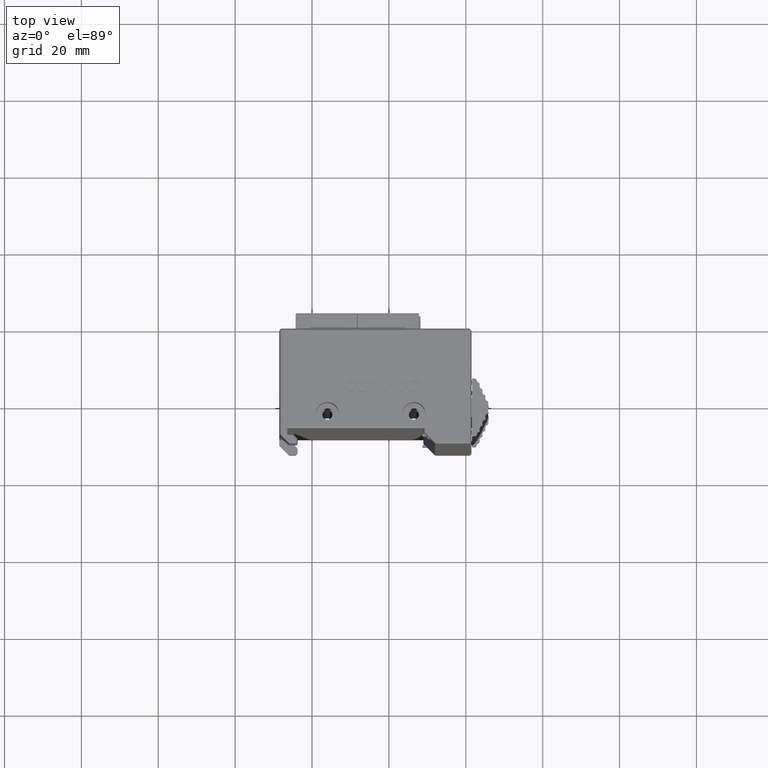
[diagram: clean part render]
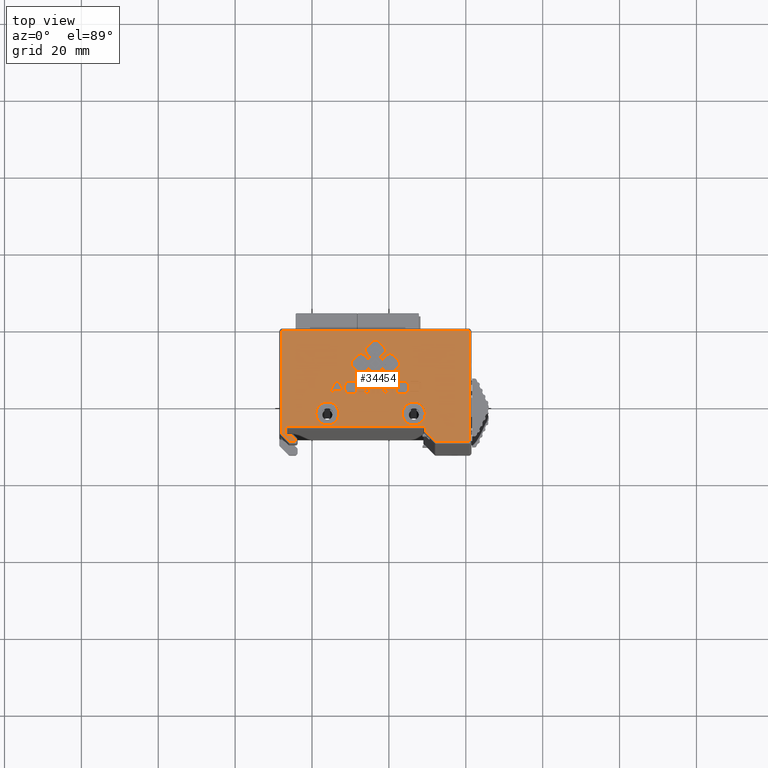
[diagram: same view with one face highlighted and labeled with its STEP entity id]
A machine part, top view. The second image highlights one B-rep face of the part: STEP entity #34454.
In plain terms, the highlighted planar face has unit normal (0, 0, 1).
Its self-contained STEP definition (entity closure, byte-faithful):
#218 = ORIENTED_EDGE ( 'NONE', *, *, #34142, .T. ) ;
#219 = ORIENTED_EDGE ( 'NONE', *, *, #34141, .T. ) ;
#220 = ORIENTED_EDGE ( 'NONE', *, *, #34140, .T. ) ;
#221 = ORIENTED_EDGE ( 'NONE', *, *, #34139, .T. ) ;
#222 = ORIENTED_EDGE ( 'NONE', *, *, #34137, .T. ) ;
#223 = ORIENTED_EDGE ( 'NONE', *, *, #34135, .T. ) ;
#224 = ORIENTED_EDGE ( 'NONE', *, *, #34133, .T. ) ;
#225 = ORIENTED_EDGE ( 'NONE', *, *, #34131, .T. ) ;
#226 = ORIENTED_EDGE ( 'NONE', *, *, #34130, .T. ) ;
#227 = ORIENTED_EDGE ( 'NONE', *, *, #34128, .T. ) ;
#228 = ORIENTED_EDGE ( 'NONE', *, *, #34144, .T. ) ;
#229 = ORIENTED_EDGE ( 'NONE', *, *, #34143, .T. ) ;
#230 = ORIENTED_EDGE ( 'NONE', *, *, #37458, .T. ) ;
#231 = ORIENTED_EDGE ( 'NONE', *, *, #34145, .T. ) ;
#232 = ORIENTED_EDGE ( 'NONE', *, *, #37454, .T. ) ;
#233 = ORIENTED_EDGE ( 'NONE', *, *, #34146, .T. ) ;
#234 = ORIENTED_EDGE ( 'NONE', *, *, #34129, .T. ) ;
#235 = ORIENTED_EDGE ( 'NONE', *, *, #30209, .T. ) ;
#236 = ORIENTED_EDGE ( 'NONE', *, *, #30207, .T. ) ;
#237 = ORIENTED_EDGE ( 'NONE', *, *, #34154, .T. ) ;
#238 = ORIENTED_EDGE ( 'NONE', *, *, #34152, .T. ) ;
#239 = ORIENTED_EDGE ( 'NONE', *, *, #34148, .T. ) ;
#240 = ORIENTED_EDGE ( 'NONE', *, *, #30213, .T. ) ;
#241 = ORIENTED_EDGE ( 'NONE', *, *, #30211, .T. ) ;
#242 = ORIENTED_EDGE ( 'NONE', *, *, #34150, .T. ) ;
#243 = ORIENTED_EDGE ( 'NONE', *, *, #30226, .T. ) ;
#244 = ORIENTED_EDGE ( 'NONE', *, *, #30223, .T. ) ;
#245 = ORIENTED_EDGE ( 'NONE', *, *, #30222, .T. ) ;
#246 = ORIENTED_EDGE ( 'NONE', *, *, #30219, .T. ) ;
#247 = ORIENTED_EDGE ( 'NONE', *, *, #30214, .T. ) ;
#248 = ORIENTED_EDGE ( 'NONE', *, *, #30229, .T. ) ;
#249 = ORIENTED_EDGE ( 'NONE', *, *, #30227, .T. ) ;
#250 = ORIENTED_EDGE ( 'NONE', *, *, #30218, .T. ) ;
#251 = ORIENTED_EDGE ( 'NONE', *, *, #30244, .T. ) ;
#252 = ORIENTED_EDGE ( 'NONE', *, *, #30243, .T. ) ;
#253 = ORIENTED_EDGE ( 'NONE', *, *, #30240, .T. ) ;
#254 = ORIENTED_EDGE ( 'NONE', *, *, #30238, .T. ) ;
#255 = ORIENTED_EDGE ( 'NONE', *, *, #30236, .T. ) ;
#256 = ORIENTED_EDGE ( 'NONE', *, *, #30234, .T. ) ;
#257 = ORIENTED_EDGE ( 'NONE', *, *, #37450, .T. ) ;
#258 = ORIENTED_EDGE ( 'NONE', *, *, #30230, .T. ) ;
#259 = ORIENTED_EDGE ( 'NONE', *, *, #30248, .T. ) ;
#260 = ORIENTED_EDGE ( 'NONE', *, *, #30246, .T. ) ;
#261 = ORIENTED_EDGE ( 'NONE', *, *, #30233, .T. ) ;
#262 = ORIENTED_EDGE ( 'NONE', *, *, #30249, .T. ) ;
#263 = ORIENTED_EDGE ( 'NONE', *, *, #30256, .T. ) ;
#264 = ORIENTED_EDGE ( 'NONE', *, *, #30254, .T. ) ;
#265 = ORIENTED_EDGE ( 'NONE', *, *, #30252, .T. ) ;
#266 = ORIENTED_EDGE ( 'NONE', *, *, #30301, .T. ) ;
#267 = ORIENTED_EDGE ( 'NONE', *, *, #30297, .T. ) ;
#268 = ORIENTED_EDGE ( 'NONE', *, *, #30294, .T. ) ;
#269 = ORIENTED_EDGE ( 'NONE', *, *, #30293, .T. ) ;
#270 = ORIENTED_EDGE ( 'NONE', *, *, #30288, .T. ) ;
#271 = ORIENTED_EDGE ( 'NONE', *, *, #30285, .T. ) ;
#272 = ORIENTED_EDGE ( 'NONE', *, *, #30282, .T. ) ;
#273 = ORIENTED_EDGE ( 'NONE', *, *, #30279, .T. ) ;
#274 = ORIENTED_EDGE ( 'NONE', *, *, #30277, .T. ) ;
#275 = ORIENTED_EDGE ( 'NONE', *, *, #30272, .T. ) ;
#276 = ORIENTED_EDGE ( 'NONE', *, *, #30271, .T. ) ;
#277 = ORIENTED_EDGE ( 'NONE', *, *, #30266, .T. ) ;
#278 = ORIENTED_EDGE ( 'NONE', *, *, #30263, .T. ) ;
#279 = ORIENTED_EDGE ( 'NONE', *, *, #30257, .T. ) ;
#280 = ORIENTED_EDGE ( 'NONE', *, *, #30307, .T. ) ;
#281 = ORIENTED_EDGE ( 'NONE', *, *, #30304, .T. ) ;
#282 = ORIENTED_EDGE ( 'NONE', *, *, #30262, .T. ) ;
#283 = ORIENTED_EDGE ( 'NONE', *, *, #30328, .T. ) ;
#284 = ORIENTED_EDGE ( 'NONE', *, *, #30323, .T. ) ;
#285 = ORIENTED_EDGE ( 'NONE', *, *, #30322, .T. ) ;
#286 = ORIENTED_EDGE ( 'NONE', *, *, #30317, .T. ) ;
#287 = ORIENTED_EDGE ( 'NONE', *, *, #30308, .T. ) ;
#288 = ORIENTED_EDGE ( 'NONE', *, *, #30333, .T. ) ;
#289 = ORIENTED_EDGE ( 'NONE', *, *, #30330, .T. ) ;
#290 = ORIENTED_EDGE ( 'NONE', *, *, #30316, .T. ) ;
#291 = ORIENTED_EDGE ( 'NONE', *, *, #30365, .T. ) ;
#292 = ORIENTED_EDGE ( 'NONE', *, *, #30364, .T. ) ;
#293 = ORIENTED_EDGE ( 'NONE', *, *, #30359, .T. ) ;
#294 = ORIENTED_EDGE ( 'NONE', *, *, #30357, .T. ) ;
#295 = ORIENTED_EDGE ( 'NONE', *, *, #30353, .T. ) ;
#296 = ORIENTED_EDGE ( 'NONE', *, *, #30349, .T. ) ;
#297 = ORIENTED_EDGE ( 'NONE', *, *, #30346, .T. ) ;
#298 = ORIENTED_EDGE ( 'NONE', *, *, #30343, .T. ) ;
#299 = ORIENTED_EDGE ( 'NONE', *, *, #30334, .T. ) ;
#300 = ORIENTED_EDGE ( 'NONE', *, *, #30371, .T. ) ;
#301 = ORIENTED_EDGE ( 'NONE', *, *, #30368, .T. ) ;
#302 = ORIENTED_EDGE ( 'NONE', *, *, #30339, .T. ) ;
#303 = ORIENTED_EDGE ( 'NONE', *, *, #30443, .T. ) ;
#304 = ORIENTED_EDGE ( 'NONE', *, *, #30441, .T. ) ;
#305 = ORIENTED_EDGE ( 'NONE', *, *, #30434, .T. ) ;
#306 = ORIENTED_EDGE ( 'NONE', *, *, #30432, .T. ) ;
#307 = ORIENTED_EDGE ( 'NONE', *, *, #30426, .T. ) ;
#308 = ORIENTED_EDGE ( 'NONE', *, *, #37442, .T. ) ;
#309 = ORIENTED_EDGE ( 'NONE', *, *, #30424, .T. ) ;
#310 = ORIENTED_EDGE ( 'NONE', *, *, #30419, .T. ) ;
#311 = ORIENTED_EDGE ( 'NONE', *, *, #33974, .F. ) ;
#312 = ORIENTED_EDGE ( 'NONE', *, *, #30417, .T. ) ;
#313 = ORIENTED_EDGE ( 'NONE', *, *, #30415, .T. ) ;
#314 = ORIENTED_EDGE ( 'NONE', *, *, #30409, .T. ) ;
#315 = ORIENTED_EDGE ( 'NONE', *, *, #37446, .T. ) ;
#316 = ORIENTED_EDGE ( 'NONE', *, *, #30407, .T. ) ;
#317 = ORIENTED_EDGE ( 'NONE', *, *, #30402, .T. ) ;
#318 = ORIENTED_EDGE ( 'NONE', *, *, #30400, .T. ) ;
#319 = ORIENTED_EDGE ( 'NONE', *, *, #30394, .T. ) ;
#320 = ORIENTED_EDGE ( 'NONE', *, *, #33962, .F. ) ;
#321 = ORIENTED_EDGE ( 'NONE', *, *, #30393, .T. ) ;
#322 = ORIENTED_EDGE ( 'NONE', *, *, #33996, .F. ) ;
#323 = ORIENTED_EDGE ( 'NONE', *, *, #30391, .T. ) ;
#324 = ORIENTED_EDGE ( 'NONE', *, *, #30390, .T. ) ;
#325 = ORIENTED_EDGE ( 'NONE', *, *, #30385, .T. ) ;
#326 = ORIENTED_EDGE ( 'NONE', *, *, #30383, .T. ) ;
#327 = ORIENTED_EDGE ( 'NONE', *, *, #30374, .T. ) ;
#328 = ORIENTED_EDGE ( 'NONE', *, *, #30445, .T. ) ;
#329 = ORIENTED_EDGE ( 'NONE', *, *, #33987, .F. ) ;
#331 = ORIENTED_EDGE ( 'NONE', *, *, #30379, .T. ) ;
#1247 = VERTEX_POINT ( 'NONE', #11587 ) ;
#1249 = VERTEX_POINT ( 'NONE', #11588 ) ;
#1250 = VERTEX_POINT ( 'NONE', #11589 ) ;
#1252 = VERTEX_POINT ( 'NONE', #11590 ) ;
#1253 = VERTEX_POINT ( 'NONE', #11591 ) ;
#1255 = VERTEX_POINT ( 'NONE', #11592 ) ;
#1256 = VERTEX_POINT ( 'NONE', #11593 ) ;
#1257 = VERTEX_POINT ( 'NONE', #11594 ) ;
#1259 = VERTEX_POINT ( 'NONE', #11595 ) ;
#1260 = VERTEX_POINT ( 'NONE', #11596 ) ;
#1262 = VERTEX_POINT ( 'NONE', #11597 ) ;
#1263 = VERTEX_POINT ( 'NONE', #11598 ) ;
#1264 = VERTEX_POINT ( 'NONE', #11599 ) ;
#1266 = VERTEX_POINT ( 'NONE', #11600 ) ;
#1267 = VERTEX_POINT ( 'NONE', #11601 ) ;
#1269 = VERTEX_POINT ( 'NONE', #11602 ) ;
#1270 = VERTEX_POINT ( 'NONE', #11603 ) ;
#1271 = VERTEX_POINT ( 'NONE', #11604 ) ;
#1273 = VERTEX_POINT ( 'NONE', #11605 ) ;
#1274 = VERTEX_POINT ( 'NONE', #11606 ) ;
#1276 = VERTEX_POINT ( 'NONE', #11607 ) ;
#1277 = VERTEX_POINT ( 'NONE', #11608 ) ;
#1278 = VERTEX_POINT ( 'NONE', #11609 ) ;
#1280 = VERTEX_POINT ( 'NONE', #11610 ) ;
#1281 = VERTEX_POINT ( 'NONE', #11611 ) ;
#1283 = VERTEX_POINT ( 'NONE', #11612 ) ;
#1284 = VERTEX_POINT ( 'NONE', #11613 ) ;
#1285 = VERTEX_POINT ( 'NONE', #11614 ) ;
#1287 = VERTEX_POINT ( 'NONE', #11615 ) ;
#1288 = VERTEX_POINT ( 'NONE', #11616 ) ;
#1290 = VERTEX_POINT ( 'NONE', #11617 ) ;
#1292 = VERTEX_POINT ( 'NONE', #11618 ) ;
#1293 = VERTEX_POINT ( 'NONE', #11619 ) ;
#1295 = VERTEX_POINT ( 'NONE', #11620 ) ;
#1298 = VERTEX_POINT ( 'NONE', #11622 ) ;
#1299 = VERTEX_POINT ( 'NONE', #11623 ) ;
#1300 = VERTEX_POINT ( 'NONE', #11624 ) ;
#1301 = VERTEX_POINT ( 'NONE', #11625 ) ;
#1303 = VERTEX_POINT ( 'NONE', #11626 ) ;
#1305 = VERTEX_POINT ( 'NONE', #11627 ) ;
#1306 = VERTEX_POINT ( 'NONE', #11628 ) ;
#1308 = VERTEX_POINT ( 'NONE', #11629 ) ;
#1309 = VERTEX_POINT ( 'NONE', #11630 ) ;
#1311 = VERTEX_POINT ( 'NONE', #11631 ) ;
#1312 = VERTEX_POINT ( 'NONE', #11632 ) ;
#1313 = VERTEX_POINT ( 'NONE', #11633 ) ;
#1314 = VERTEX_POINT ( 'NONE', #11634 ) ;
#1315 = VERTEX_POINT ( 'NONE', #11635 ) ;
#1317 = VERTEX_POINT ( 'NONE', #11636 ) ;
#1319 = VERTEX_POINT ( 'NONE', #11637 ) ;
#1320 = VERTEX_POINT ( 'NONE', #11638 ) ;
#1322 = VERTEX_POINT ( 'NONE', #11639 ) ;
#1323 = VERTEX_POINT ( 'NONE', #11640 ) ;
#1325 = VERTEX_POINT ( 'NONE', #11641 ) ;
#1326 = VERTEX_POINT ( 'NONE', #11642 ) ;
#1327 = VERTEX_POINT ( 'NONE', #11643 ) ;
#1328 = VERTEX_POINT ( 'NONE', #11644 ) ;
#1330 = VERTEX_POINT ( 'NONE', #11645 ) ;
#1331 = VERTEX_POINT ( 'NONE', #11646 ) ;
#1332 = VERTEX_POINT ( 'NONE', #11647 ) ;
#1335 = VERTEX_POINT ( 'NONE', #11649 ) ;
#1337 = VERTEX_POINT ( 'NONE', #11650 ) ;
#1339 = VERTEX_POINT ( 'NONE', #11651 ) ;
#1340 = VERTEX_POINT ( 'NONE', #11652 ) ;
#1341 = VERTEX_POINT ( 'NONE', #11653 ) ;
#1343 = VERTEX_POINT ( 'NONE', #11654 ) ;
#1345 = VERTEX_POINT ( 'NONE', #11655 ) ;
#1347 = VERTEX_POINT ( 'NONE', #11656 ) ;
#1348 = VERTEX_POINT ( 'NONE', #11657 ) ;
#1349 = VERTEX_POINT ( 'NONE', #11658 ) ;
#1351 = VERTEX_POINT ( 'NONE', #11659 ) ;
#1352 = VERTEX_POINT ( 'NONE', #11660 ) ;
#1354 = VERTEX_POINT ( 'NONE', #11661 ) ;
#1355 = VERTEX_POINT ( 'NONE', #11662 ) ;
#1357 = VERTEX_POINT ( 'NONE', #11663 ) ;
#1359 = VERTEX_POINT ( 'NONE', #11664 ) ;
#1360 = VERTEX_POINT ( 'NONE', #11665 ) ;
#1362 = VERTEX_POINT ( 'NONE', #11666 ) ;
#1363 = VERTEX_POINT ( 'NONE', #11667 ) ;
#1365 = VERTEX_POINT ( 'NONE', #11668 ) ;
#1367 = VERTEX_POINT ( 'NONE', #11669 ) ;
#1368 = VERTEX_POINT ( 'NONE', #11670 ) ;
#1369 = VERTEX_POINT ( 'NONE', #11671 ) ;
#1370 = VERTEX_POINT ( 'NONE', #11672 ) ;
#1372 = VERTEX_POINT ( 'NONE', #11673 ) ;
#1374 = VERTEX_POINT ( 'NONE', #11674 ) ;
#1499 = VERTEX_POINT ( 'NONE', #11757 ) ;
#1517 = VERTEX_POINT ( 'NONE', #11768 ) ;
#1522 = VERTEX_POINT ( 'NONE', #11771 ) ;
#1527 = VERTEX_POINT ( 'NONE', #11774 ) ;
#1535 = VERTEX_POINT ( 'NONE', #11779 ) ;
#1542 = VERTEX_POINT ( 'NONE', #11784 ) ;
#1550 = VERTEX_POINT ( 'NONE', #11789 ) ;
#1554 = VERTEX_POINT ( 'NONE', #11792 ) ;
#1555 = VERTEX_POINT ( 'NONE', #11793 ) ;
#4406 = VERTEX_POINT ( 'NONE', #14416 ) ;
#4408 = VERTEX_POINT ( 'NONE', #14417 ) ;
#4411 = VERTEX_POINT ( 'NONE', #14420 ) ;
#4413 = VERTEX_POINT ( 'NONE', #14421 ) ;
#4417 = VERTEX_POINT ( 'NONE', #14424 ) ;
#4419 = VERTEX_POINT ( 'NONE', #14425 ) ;
#4423 = VERTEX_POINT ( 'NONE', #14428 ) ;
#4424 = VERTEX_POINT ( 'NONE', #14429 ) ;
#4431 = VERTEX_POINT ( 'NONE', #14433 ) ;
#4451 = VERTEX_POINT ( 'NONE', #14447 ) ;
#4494 = VERTEX_POINT ( 'NONE', #14477 ) ;
#4695 = VERTEX_POINT ( 'NONE', #15449 ) ;
#4698 = VERTEX_POINT ( 'NONE', #15452 ) ;
#4703 = VERTEX_POINT ( 'NONE', #15455 ) ;
#4708 = VERTEX_POINT ( 'NONE', #15458 ) ;
#4713 = VERTEX_POINT ( 'NONE', #15461 ) ;
#4726 = VERTEX_POINT ( 'NONE', #15470 ) ;
#4747 = VERTEX_POINT ( 'NONE', #15486 ) ;
#11587 = CARTESIAN_POINT ( 'NONE',  ( 2.277410404300249900, -6.394431680895750400, 17.50000000000000000 ) ) ;
#11588 = CARTESIAN_POINT ( 'NONE',  ( 2.277410404300408900, -4.814725042074723400, 17.50000000000000000 ) ) ;
#11589 = CARTESIAN_POINT ( 'NONE',  ( 0.7898533194106752700, -3.327167957185175300, 17.50000000000000000 ) ) ;
#11590 = CARTESIAN_POINT ( 'NONE',  ( -0.7898533194107544300, -3.327167957185236200, 17.50000000000000000 ) ) ;
#11591 = CARTESIAN_POINT ( 'NONE',  ( -2.277410404300342700, -6.394431680895842800, 17.50000000000000000 ) ) ;
#11592 = CARTESIAN_POINT ( 'NONE',  ( -2.933550935908749900, -6.864401999738249500, 17.50000000000000000 ) ) ;
#11593 = CARTESIAN_POINT ( 'NONE',  ( -4.513257574729843600, -6.864401999738158000, 17.50000000000000000 ) ) ;
#11594 = CARTESIAN_POINT ( 'NONE',  ( -6.000814659619607900, -9.931665723449077300, 17.50000000000000000 ) ) ;
#11595 = CARTESIAN_POINT ( 'NONE',  ( -4.513257574730015900, -11.41922280833998500, 17.50000000000000000 ) ) ;
#11596 = CARTESIAN_POINT ( 'NONE',  ( -2.933550935908473300, -11.41922280834015900, 17.50000000000000000 ) ) ;
#11597 = CARTESIAN_POINT ( 'NONE',  ( 2.933550935908815700, -11.41922280833981400, 17.50000000000000000 ) ) ;
#11598 = CARTESIAN_POINT ( 'NONE',  ( 4.513257574730108200, -11.41922280834007900, 17.50000000000000000 ) ) ;
#11599 = CARTESIAN_POINT ( 'NONE',  ( 6.000814659619266000, -9.931665723448734400, 17.50000000000000000 ) ) ;
#11600 = CARTESIAN_POINT ( 'NONE',  ( 6.000814659619475600, -8.351959084628289200, 17.50000000000000000 ) ) ;
#11601 = CARTESIAN_POINT ( 'NONE',  ( 2.933550935908788100, -6.864401999738287700, 17.50000000000000000 ) ) ;
#11602 = CARTESIAN_POINT ( 'NONE',  ( 4.513257574730133100, -6.864401999738132300, 17.50000000000000000 ) ) ;
#11603 = CARTESIAN_POINT ( 'NONE',  ( 9.088195763449000700, -16.24914812591000400, 17.50000000000000000 ) ) ;
#11604 = CARTESIAN_POINT ( 'NONE',  ( 9.088195763449000700, -16.92680770036999900, 17.50000000000000000 ) ) ;
#11605 = CARTESIAN_POINT ( 'NONE',  ( 11.19983511937000000, -16.92680770036999900, 17.50000000000000000 ) ) ;
#11606 = CARTESIAN_POINT ( 'NONE',  ( 12.04690958745255000, -16.07973323229000000, 17.50000000000000000 ) ) ;
#11607 = CARTESIAN_POINT ( 'NONE',  ( 12.04690958744999900, -14.58940292826000000, 17.50000000000000000 ) ) ;
#11608 = CARTESIAN_POINT ( 'NONE',  ( 11.19983511937000000, -13.74232846017745000, 17.50000000000000000 ) ) ;
#11609 = CARTESIAN_POINT ( 'NONE',  ( 9.088195763449000700, -13.74232846018000000, 17.50000000000000000 ) ) ;
#11610 = CARTESIAN_POINT ( 'NONE',  ( 9.088195763449000700, -14.41998803463999900, 17.50000000000000000 ) ) ;
#11611 = CARTESIAN_POINT ( 'NONE',  ( 11.19983511937000000, -14.41998803463999900, 17.50000000000000000 ) ) ;
#11612 = CARTESIAN_POINT ( 'NONE',  ( 11.36925001298350000, -14.58940292826000000, 17.50000000000000000 ) ) ;
#11613 = CARTESIAN_POINT ( 'NONE',  ( 11.19983511937000000, -16.24914812591000400, 17.50000000000000000 ) ) ;
#11614 = CARTESIAN_POINT ( 'NONE',  ( 11.36925001298000000, -16.07973323229000000, 17.50000000000000000 ) ) ;
#11615 = CARTESIAN_POINT ( 'NONE',  ( 6.330854867161000300, -16.92680770037320000, 17.50000000000000000 ) ) ;
#11616 = CARTESIAN_POINT ( 'NONE',  ( 7.597126368721999900, -16.92680770036999900, 17.50000000000000000 ) ) ;
#11617 = CARTESIAN_POINT ( 'NONE',  ( 8.557144099218250600, -15.96678996988000100, 17.50000000000000000 ) ) ;
#11618 = CARTESIAN_POINT ( 'NONE',  ( 8.557144099218001900, -14.70234619066999900, 17.50000000000000000 ) ) ;
#11619 = CARTESIAN_POINT ( 'NONE',  ( 7.597126368721999900, -13.74232846017674900, 17.50000000000000000 ) ) ;
#11620 = CARTESIAN_POINT ( 'NONE',  ( 6.330854867161000300, -13.74232846018000000, 17.50000000000000000 ) ) ;
#11622 = CARTESIAN_POINT ( 'NONE',  ( 5.370837136664300200, -15.96678996988000100, 17.50000000000000000 ) ) ;
#11623 = CARTESIAN_POINT ( 'NONE',  ( 5.370837136664251300, -14.70234619066999900, 17.50000000000000000 ) ) ;
#11624 = CARTESIAN_POINT ( 'NONE',  ( 0.3258501050114499500, -14.30704477223000000, 17.50000000000000000 ) ) ;
#11625 = CARTESIAN_POINT ( 'NONE',  ( 0.3258501050115000200, -16.92680770036999900, 17.50000000000000000 ) ) ;
#11626 = CARTESIAN_POINT ( 'NONE',  ( 1.003509679480000000, -16.92680770036999900, 17.50000000000000000 ) ) ;
#11627 = CARTESIAN_POINT ( 'NONE',  ( 1.003509679479999600, -14.48829830865999700, 17.50000000000000000 ) ) ;
#11628 = CARTESIAN_POINT ( 'NONE',  ( 2.201490120388921700, -16.70329141802170600, 17.50000000000000000 ) ) ;
#11629 = CARTESIAN_POINT ( 'NONE',  ( 2.951494928314444700, -16.70329141802214300, 17.50000000000000000 ) ) ;
#11630 = CARTESIAN_POINT ( 'NONE',  ( 4.162125897965999900, -14.46490824899000100, 17.50000000000000000 ) ) ;
#11631 = CARTESIAN_POINT ( 'NONE',  ( 4.162125897965999900, -16.92680770036999900, 17.50000000000000000 ) ) ;
#11632 = CARTESIAN_POINT ( 'NONE',  ( 4.839785472434001300, -16.92680770036999900, 17.50000000000000000 ) ) ;
#11633 = CARTESIAN_POINT ( 'NONE',  ( 4.839785472434001300, -14.30704477223000000, 17.50000000000000000 ) ) ;
#11634 = CARTESIAN_POINT ( 'NONE',  ( 4.275069160376999900, -13.74232846017664900, 17.50000000000000000 ) ) ;
#11635 = CARTESIAN_POINT ( 'NONE',  ( 4.119102367846999800, -13.74232846018000000, 17.50000000000000000 ) ) ;
#11636 = CARTESIAN_POINT ( 'NONE',  ( 3.622382198356967700, -14.03839335063781000, 17.50000000000000000 ) ) ;
#11637 = CARTESIAN_POINT ( 'NONE',  ( 2.576492524351000400, -15.97217986499000000, 17.50000000000000000 ) ) ;
#11638 = CARTESIAN_POINT ( 'NONE',  ( 1.530602850345144800, -14.03839335063841700, 17.50000000000000000 ) ) ;
#11639 = CARTESIAN_POINT ( 'NONE',  ( 0.8905664170681999400, -13.74232846017660000, 17.50000000000000000 ) ) ;
#11640 = CARTESIAN_POINT ( 'NONE',  ( 1.033882680856000000, -13.74232846017664900, 17.50000000000000000 ) ) ;
#11641 = CARTESIAN_POINT ( 'NONE',  ( -1.001778299857000000, -13.74232846018000000, 17.50000000000000000 ) ) ;
#11642 = CARTESIAN_POINT ( 'NONE',  ( -1.001778299857000000, -16.92680770036999900, 17.50000000000000000 ) ) ;
#11643 = CARTESIAN_POINT ( 'NONE',  ( -0.1672696213621000500, -13.74232846018000000, 17.50000000000000000 ) ) ;
#11644 = CARTESIAN_POINT ( 'NONE',  ( -0.1672696213621000200, -16.92680770036999900, 17.50000000000000000 ) ) ;
#11645 = CARTESIAN_POINT ( 'NONE',  ( -4.339814525250000400, -16.24914812591000400, 17.50000000000000000 ) ) ;
#11646 = CARTESIAN_POINT ( 'NONE',  ( -4.339814525250000400, -16.92680770036999900, 17.50000000000000000 ) ) ;
#11647 = CARTESIAN_POINT ( 'NONE',  ( -1.748991675638000000, -16.92680770036999900, 17.50000000000000000 ) ) ;
#11649 = CARTESIAN_POINT ( 'NONE',  ( -1.466139636663710500, -16.22997454749946700, 17.50000000000000000 ) ) ;
#11650 = CARTESIAN_POINT ( 'NONE',  ( -3.328330952505000400, -14.41998803463999900, 17.50000000000000000 ) ) ;
#11651 = CARTESIAN_POINT ( 'NONE',  ( -1.343168763392000000, -14.41998803463999900, 17.50000000000000000 ) ) ;
#11652 = CARTESIAN_POINT ( 'NONE',  ( -1.343168763392000000, -13.74232846018000000, 17.50000000000000000 ) ) ;
#11653 = CARTESIAN_POINT ( 'NONE',  ( -2.418687390369000000, -16.24914812591000400, 17.50000000000000000 ) ) ;
#11654 = CARTESIAN_POINT ( 'NONE',  ( -4.203586132901262000, -14.51428736089781600, 17.50000000000000000 ) ) ;
#11655 = CARTESIAN_POINT ( 'NONE',  ( -6.983359607968499600, -16.92680770037324900, 17.50000000000000000 ) ) ;
#11656 = CARTESIAN_POINT ( 'NONE',  ( -5.717088106408000100, -16.92680770036999900, 17.50000000000000000 ) ) ;
#11657 = CARTESIAN_POINT ( 'NONE',  ( -4.757070375911250300, -15.96678996988000100, 17.50000000000000000 ) ) ;
#11658 = CARTESIAN_POINT ( 'NONE',  ( -4.757070375910999800, -14.70234619066999900, 17.50000000000000000 ) ) ;
#11659 = CARTESIAN_POINT ( 'NONE',  ( -5.717088106408000100, -13.74232846017674900, 17.50000000000000000 ) ) ;
#11660 = CARTESIAN_POINT ( 'NONE',  ( -6.983359607968999700, -13.74232846018000000, 17.50000000000000000 ) ) ;
#11661 = CARTESIAN_POINT ( 'NONE',  ( -7.943377338465250400, -15.96678996988000100, 17.50000000000000000 ) ) ;
#11662 = CARTESIAN_POINT ( 'NONE',  ( -7.943377338465250400, -14.70234619066999900, 17.50000000000000000 ) ) ;
#11663 = CARTESIAN_POINT ( 'NONE',  ( -12.04690958744999900, -16.92680770036999900, 17.50000000000000000 ) ) ;
#11664 = CARTESIAN_POINT ( 'NONE',  ( -11.28151969047000100, -16.92680770036999900, 17.50000000000000000 ) ) ;
#11665 = CARTESIAN_POINT ( 'NONE',  ( -10.87409692031000000, -16.15084400418000100, 17.50000000000000000 ) ) ;
#11666 = CARTESIAN_POINT ( 'NONE',  ( -9.025977572395000000, -16.15084400418000100, 17.50000000000000000 ) ) ;
#11667 = CARTESIAN_POINT ( 'NONE',  ( -8.622576553092999400, -16.92680770036999900, 17.50000000000000000 ) ) ;
#11668 = CARTESIAN_POINT ( 'NONE',  ( -7.858813069533000300, -16.92680770036999900, 17.50000000000000000 ) ) ;
#11669 = CARTESIAN_POINT ( 'NONE',  ( -10.57445052939798600, -14.12241173417792000, 17.50000000000000000 ) ) ;
#11670 = CARTESIAN_POINT ( 'NONE',  ( -9.315404701737058700, -14.12497485243796400, 17.50000000000000000 ) ) ;
#11671 = CARTESIAN_POINT ( 'NONE',  ( 13.14837579164000300, -26.83143395359000400, 17.50000000000000000 ) ) ;
#11672 = CARTESIAN_POINT ( 'NONE',  ( 13.14837579164000100, -25.45162420835999500, 17.50000000000000000 ) ) ;
#11673 = CARTESIAN_POINT ( 'NONE',  ( -23.34837579163999500, -25.45162420835999500, 17.50000000000000000 ) ) ;
#11674 = CARTESIAN_POINT ( 'NONE',  ( -23.34837579163999500, -27.84837579164000200, 17.50000000000000000 ) ) ;
#11757 = CARTESIAN_POINT ( 'NONE',  ( -24.35162420835999700, -0.5000000000000002200, 17.50000000000000000 ) ) ;
#11768 = CARTESIAN_POINT ( 'NONE',  ( 0.7898533194097574500, -11.41922280833945200, 17.50000000000000000 ) ) ;
#11771 = CARTESIAN_POINT ( 'NONE',  ( 1.861702127659529100, -10.34737400008952900, 17.50000000000000000 ) ) ;
#11774 = CARTESIAN_POINT ( 'NONE',  ( 1.861702127659826000, -7.936250807987174300, 17.50000000000000000 ) ) ;
#11779 = CARTESIAN_POINT ( 'NONE',  ( 1.298646702434286300, -7.373195382761713800, 17.50000000000000000 ) ) ;
#11784 = CARTESIAN_POINT ( 'NONE',  ( -1.298646702433931000, -7.373195382762069100, 17.50000000000000000 ) ) ;
#11789 = CARTESIAN_POINT ( 'NONE',  ( -1.861702127659471000, -7.936250807987529600, 17.50000000000000000 ) ) ;
#11792 = CARTESIAN_POINT ( 'NONE',  ( -0.7898533194104029300, -11.41922280834009800, 17.50000000000000000 ) ) ;
#11793 = CARTESIAN_POINT ( 'NONE',  ( -1.861702127660174800, -10.34737400009017300, 17.50000000000000000 ) ) ;
#14416 = CARTESIAN_POINT ( 'NONE',  ( 7.000000000000000000, -22.10000000000000100, 17.50000000000000000 ) ) ;
#14417 = CARTESIAN_POINT ( 'NONE',  ( 13.00000000000000200, -22.10000000000000100, 17.50000000000000000 ) ) ;
#14420 = CARTESIAN_POINT ( 'NONE',  ( -15.50000000000000000, -22.10000000000000100, 17.50000000000000000 ) ) ;
#14421 = CARTESIAN_POINT ( 'NONE',  ( -9.500000000000001800, -22.10000000000000100, 17.50000000000000000 ) ) ;
#14424 = CARTESIAN_POINT ( 'NONE',  ( -3.890239748372500600, -13.74232846018000000, 17.50000000000000000 ) ) ;
#14425 = CARTESIAN_POINT ( 'NONE',  ( -4.339814525250900200, -14.19190323704999900, 17.50000000000000000 ) ) ;
#14428 = CARTESIAN_POINT ( 'NONE',  ( -6.000814659619750000, -8.351959084628250100, 17.50000000000000000 ) ) ;
#14429 = CARTESIAN_POINT ( 'NONE',  ( -6.327982616804999500, -9.141812404038999400, 17.50000000000000000 ) ) ;
#14433 = CARTESIAN_POINT ( 'NONE',  ( -24.35162420835994700, -27.33143395358991900, 17.50000000000000000 ) ) ;
#14447 = CARTESIAN_POINT ( 'NONE',  ( 24.35162420835999700, -29.45162420835999800, 17.50000000000000000 ) ) ;
#14477 = CARTESIAN_POINT ( 'NONE',  ( -22.23143395358499000, -29.45162420836501500, 17.50000000000000000 ) ) ;
#15264 = CIRCLE ( 'NONE', #26429, 0.9600177304965006300 ) ;
#15265 = CIRCLE ( 'NONE', #26448, 0.9600177304964997400 ) ;
#15266 = CIRCLE ( 'NONE', #26444, 0.9600177304964997400 ) ;
#15267 = CIRCLE ( 'NONE', #26440, 0.9600177304965006300 ) ;
#15268 = CIRCLE ( 'NONE', #27623, 0.4495747768779000400 ) ;
#15269 = CIRCLE ( 'NONE', #27633, 0.4058229122465002400 ) ;
#15271 = CIRCLE ( 'NONE', #27651, 0.5647163120567000300 ) ;
#15272 = CIRCLE ( 'NONE', #27657, 0.5647163120567001400 ) ;
#15273 = CIRCLE ( 'NONE', #27661, 0.5647163120567001400 ) ;
#15274 = CIRCLE ( 'NONE', #27671, 0.4263365725533001500 ) ;
#15275 = CIRCLE ( 'NONE', #27678, 0.5647163120567999500 ) ;
#15277 = CIRCLE ( 'NONE', #27686, 0.9600177304964997400 ) ;
#15278 = CIRCLE ( 'NONE', #27690, 0.9600177304964997400 ) ;
#15279 = CIRCLE ( 'NONE', #27694, 0.9600177304964997400 ) ;
#15280 = CIRCLE ( 'NONE', #27681, 0.9600177304963999300 ) ;
#15281 = CIRCLE ( 'NONE', #27629, 0.1694148936169995200 ) ;
#15282 = CIRCLE ( 'NONE', #27701, 0.1694148936169995200 ) ;
#15283 = CIRCLE ( 'NONE', #27710, 0.8470744680850999000 ) ;
#15284 = CIRCLE ( 'NONE', #27714, 0.8470744680850999000 ) ;
#15285 = CIRCLE ( 'NONE', #27722, 1.117021276596000100 ) ;
#15286 = CIRCLE ( 'NONE', #27728, 1.117021276595999700 ) ;
#15287 = CIRCLE ( 'NONE', #27732, 1.117021276596000100 ) ;
#15288 = CIRCLE ( 'NONE', #27724, 1.117021276595999900 ) ;
#15289 = CIRCLE ( 'NONE', #27737, 1.117021276596000100 ) ;
#15290 = CIRCLE ( 'NONE', #27717, 1.117021276595999700 ) ;
#15291 = CIRCLE ( 'NONE', #27744, 1.117021276596000100 ) ;
#15292 = CIRCLE ( 'NONE', #27748, 1.117021276595999700 ) ;
#15293 = CIRCLE ( 'NONE', #27752, 1.117021276595999900 ) ;
#15294 = CIRCLE ( 'NONE', #27756, 1.117021276595999900 ) ;
#15449 = CARTESIAN_POINT ( 'NONE',  ( -20.87837579164000300, -29.45162420835999800, 17.50000000000000000 ) ) ;
#15452 = CARTESIAN_POINT ( 'NONE',  ( -20.87837579163996800, -28.66856604640997500, 17.50000000000000000 ) ) ;
#15455 = CARTESIAN_POINT ( 'NONE',  ( -21.69856604640999700, -27.84837579163505300, 17.50000000000000000 ) ) ;
#15458 = CARTESIAN_POINT ( 'NONE',  ( 15.76856604641000300, -29.45162420836498600, 17.50000000000000000 ) ) ;
#15461 = CARTESIAN_POINT ( 'NONE',  ( -2.277410404300080200, -4.814725042075079600, 17.50000000000000000 ) ) ;
#15470 = CARTESIAN_POINT ( 'NONE',  ( -2.604578361485999900, -5.604578361485000200, 17.50000000000000000 ) ) ;
#15486 = CARTESIAN_POINT ( 'NONE',  ( 24.35162420835999700, -0.5000000000000002200, 17.50000000000000000 ) ) ;
#18619 = EDGE_LOOP ( 'NONE', ( #281, #280, #279, #282, #278, #277, #276, #275, #274, #273, #272, #271, #270, #269, #268, #267, #266 ) ) ;
#18633 = EDGE_LOOP ( 'NONE', ( #301, #300, #299, #302, #298, #297, #296, #295, #294, #293, #292, #291 ) ) ;
#18640 = EDGE_LOOP ( 'NONE', ( #264, #263, #262, #265 ) ) ;
#18689 = EDGE_LOOP ( 'NONE', ( #233, #232 ) ) ;
#18697 = EDGE_LOOP ( 'NONE', ( #229, #228, #227, #234, #226, #225, #224, #223, #222, #221, #220, #219, #218 ) ) ;
#18737 = EDGE_LOOP ( 'NONE', ( #241, #240, #239, #242, #238, #237, #236, #235 ) ) ;
#18739 = EDGE_LOOP ( 'NONE', ( #231, #230 ) ) ;
#18740 = EDGE_LOOP ( 'NONE', ( #249, #248, #247, #250, #246, #245, #244, #243 ) ) ;
#18741 = EDGE_LOOP ( 'NONE', ( #329, #328, #327, #331, #326, #325, #324, #323, #322, #321, #320, #319, #318, #317, #316, #315, #314, #313, #312, #311, #310, #309, #308, #307, #306, #305, #304, #303 ) ) ;
#18991 = EDGE_LOOP ( 'NONE', ( #289, #288, #287, #290, #286, #285, #284, #283 ) ) ;
#19120 = EDGE_LOOP ( 'NONE', ( #260, #259, #258, #261, #257, #256, #255, #254, #253, #252, #251 ) ) ;
#26429 = AXIS2_PLACEMENT_3D ( 'NONE', #27146, #27153, #27154 ) ;
#26430 = VECTOR ( 'NONE', #27088, 1000.000000000000000 ) ;
#26432 = VECTOR ( 'NONE', #27095, 1000.000000000000200 ) ;
#26434 = VECTOR ( 'NONE', #27101, 1000.000000000000000 ) ;
#26436 = VECTOR ( 'NONE', #27107, 1000.000000000000100 ) ;
#26437 = VECTOR ( 'NONE', #27110, 1000.000000000000000 ) ;
#26440 = AXIS2_PLACEMENT_3D ( 'NONE', #27089, #27120, #27121 ) ;
#26442 = VECTOR ( 'NONE', #27125, 1000.000000000000000 ) ;
#26444 = AXIS2_PLACEMENT_3D ( 'NONE', #27122, #27132, #27133 ) ;
#26446 = VECTOR ( 'NONE', #27137, 1000.000000000000000 ) ;
#26448 = AXIS2_PLACEMENT_3D ( 'NONE', #27134, #27144, #27145 ) ;
#26450 = VECTOR ( 'NONE', #27149, 1000.000000000000000 ) ;
#26452 = VECTOR ( 'NONE', #27158, 1000.000000000000100 ) ;
#27086 = LINE ( 'NONE', #27087, #26430 ) ;
#27087 = CARTESIAN_POINT ( 'NONE',  ( 0.0000000000000000000, -16.15084400418000100, 17.50000000000000000 ) ) ;
#27088 = DIRECTION ( 'NONE',  ( -1.000000000000000000, -0.0000000000000000000, 0.0000000000000000000 ) ) ;
#27089 = CARTESIAN_POINT ( 'NONE',  ( -6.983359607968999700, -14.70234619066999900, 17.50000000000000000 ) ) ;
#27093 = LINE ( 'NONE', #27094, #26432 ) ;
#27094 = CARTESIAN_POINT ( 'NONE',  ( -10.87409692031000000, -16.15084400418000100, 17.50000000000000000 ) ) ;
#27095 = DIRECTION ( 'NONE',  ( -0.4648713138347069800, -0.8853782590359858800, 0.0000000000000000000 ) ) ;
#27099 = LINE ( 'NONE', #27100, #26434 ) ;
#27100 = CARTESIAN_POINT ( 'NONE',  ( 0.0000000000000000000, -16.92680770036999900, 17.50000000000000000 ) ) ;
#27101 = DIRECTION ( 'NONE',  ( -1.000000000000000000, -0.0000000000000000000, 0.0000000000000000000 ) ) ;
#27105 = LINE ( 'NONE', #27106, #26436 ) ;
#27106 = CARTESIAN_POINT ( 'NONE',  ( -12.04690958744999900, -16.92680770036999900, 17.50000000000000000 ) ) ;
#27107 = DIRECTION ( 'NONE',  ( 0.4648713138354276200, 0.8853782590356075200, 0.0000000000000000000 ) ) ;
#27108 = LINE ( 'NONE', #27109, #26437 ) ;
#27109 = CARTESIAN_POINT ( 'NONE',  ( -7.943377338465000800, 0.0000000000000000000, 17.50000000000000000 ) ) ;
#27110 = DIRECTION ( 'NONE',  ( -0.0000000000000000000, 1.000000000000000000, 0.0000000000000000000 ) ) ;
#27120 = DIRECTION ( 'NONE',  ( 0.0000000000000000000, 0.0000000000000000000, -1.000000000000000000 ) ) ;
#27121 = DIRECTION ( 'NONE',  ( -1.000000000000000000, 0.0000000000000000000, 0.0000000000000000000 ) ) ;
#27122 = CARTESIAN_POINT ( 'NONE',  ( -5.717088106408000100, -14.70234619066999900, 17.50000000000000000 ) ) ;
#27123 = LINE ( 'NONE', #27124, #26442 ) ;
#27124 = CARTESIAN_POINT ( 'NONE',  ( 0.0000000000000000000, -13.74232846018000000, 17.50000000000000000 ) ) ;
#27125 = DIRECTION ( 'NONE',  ( 1.000000000000000000, 0.0000000000000000000, -0.0000000000000000000 ) ) ;
#27132 = DIRECTION ( 'NONE',  ( 0.0000000000000000000, 0.0000000000000000000, -1.000000000000000000 ) ) ;
#27133 = DIRECTION ( 'NONE',  ( -1.000000000000000000, 0.0000000000000000000, 0.0000000000000000000 ) ) ;
#27134 = CARTESIAN_POINT ( 'NONE',  ( -5.717088106408000100, -15.96678996988000100, 17.50000000000000000 ) ) ;
#27135 = LINE ( 'NONE', #27136, #26446 ) ;
#27136 = CARTESIAN_POINT ( 'NONE',  ( -4.757070375910999800, 0.0000000000000000000, 17.50000000000000000 ) ) ;
#27137 = DIRECTION ( 'NONE',  ( 0.0000000000000000000, -1.000000000000000000, -0.0000000000000000000 ) ) ;
#27144 = DIRECTION ( 'NONE',  ( 0.0000000000000000000, 0.0000000000000000000, -1.000000000000000000 ) ) ;
#27145 = DIRECTION ( 'NONE',  ( -1.000000000000000000, 0.0000000000000000000, 0.0000000000000000000 ) ) ;
#27146 = CARTESIAN_POINT ( 'NONE',  ( -6.983359607968999700, -15.96678996988000100, 17.50000000000000000 ) ) ;
#27147 = LINE ( 'NONE', #27148, #26450 ) ;
#27148 = CARTESIAN_POINT ( 'NONE',  ( 0.0000000000000000000, -16.92680770036999900, 17.50000000000000000 ) ) ;
#27149 = DIRECTION ( 'NONE',  ( -1.000000000000000000, -0.0000000000000000000, 0.0000000000000000000 ) ) ;
#27153 = DIRECTION ( 'NONE',  ( 0.0000000000000000000, 0.0000000000000000000, -1.000000000000000000 ) ) ;
#27154 = DIRECTION ( 'NONE',  ( -1.000000000000000000, 0.0000000000000000000, 0.0000000000000000000 ) ) ;
#27155 = CARTESIAN_POINT ( 'NONE',  ( -3.890239748373000200, -14.19190323704999900, 17.50000000000000000 ) ) ;
#27156 = LINE ( 'NONE', #27157, #26452 ) ;
#27157 = CARTESIAN_POINT ( 'NONE',  ( -2.418687390369000000, -16.24914812591000400, 17.50000000000000000 ) ) ;
#27158 = DIRECTION ( 'NONE',  ( -0.7170867682667792000, 0.6969839071145806900, 0.0000000000000000000 ) ) ;
#27165 = DIRECTION ( 'NONE',  ( 0.0000000000000000000, 0.0000000000000000000, -1.000000000000000000 ) ) ;
#27166 = DIRECTION ( 'NONE',  ( -1.000000000000000000, 0.0000000000000000000, 0.0000000000000000000 ) ) ;
#27167 = CARTESIAN_POINT ( 'NONE',  ( -1.748991675638000000, -16.52098478813000100, 17.50000000000000000 ) ) ;
#27168 = LINE ( 'NONE', #27169, #27624 ) ;
#27169 = CARTESIAN_POINT ( 'NONE',  ( 0.0000000000000000000, -13.74232846018000000, 17.50000000000000000 ) ) ;
#27170 = DIRECTION ( 'NONE',  ( 1.000000000000000000, 0.0000000000000000000, -0.0000000000000000000 ) ) ;
#27174 = LINE ( 'NONE', #27175, #27626 ) ;
#27175 = CARTESIAN_POINT ( 'NONE',  ( -1.343168763392000000, 0.0000000000000000000, 17.50000000000000000 ) ) ;
#27176 = DIRECTION ( 'NONE',  ( 0.0000000000000000000, -1.000000000000000000, -0.0000000000000000000 ) ) ;
#27180 = LINE ( 'NONE', #27181, #27628 ) ;
#27181 = CARTESIAN_POINT ( 'NONE',  ( 0.0000000000000000000, -14.41998803463999900, 17.50000000000000000 ) ) ;
#27182 = DIRECTION ( 'NONE',  ( -1.000000000000000000, -0.0000000000000000000, 0.0000000000000000000 ) ) ;
#27186 = LINE ( 'NONE', #27187, #27631 ) ;
#27187 = CARTESIAN_POINT ( 'NONE',  ( -3.328330952505000400, -14.41998803463999900, 17.50000000000000000 ) ) ;
#27188 = DIRECTION ( 'NONE',  ( 0.7170867682658308400, -0.6969839071155564700, 0.0000000000000000000 ) ) ;
#27195 = DIRECTION ( 'NONE',  ( 0.0000000000000000000, 0.0000000000000000000, -1.000000000000000000 ) ) ;
#27196 = DIRECTION ( 'NONE',  ( -1.000000000000000000, 0.0000000000000000000, 0.0000000000000000000 ) ) ;
#27197 = CARTESIAN_POINT ( 'NONE',  ( 1.033882680856000000, -14.30704477223000000, 17.50000000000000000 ) ) ;
#27198 = LINE ( 'NONE', #27199, #27635 ) ;
#27199 = CARTESIAN_POINT ( 'NONE',  ( 0.0000000000000000000, -16.92680770036999900, 17.50000000000000000 ) ) ;
#27200 = DIRECTION ( 'NONE',  ( -1.000000000000000000, -0.0000000000000000000, 0.0000000000000000000 ) ) ;
#27204 = LINE ( 'NONE', #27205, #27637 ) ;
#27205 = CARTESIAN_POINT ( 'NONE',  ( -4.339814525250000400, 0.0000000000000000000, 17.50000000000000000 ) ) ;
#27206 = DIRECTION ( 'NONE',  ( -0.0000000000000000000, 1.000000000000000000, 0.0000000000000000000 ) ) ;
#27210 = LINE ( 'NONE', #27211, #27639 ) ;
#27211 = CARTESIAN_POINT ( 'NONE',  ( 0.0000000000000000000, -16.24914812591000400, 17.50000000000000000 ) ) ;
#27212 = DIRECTION ( 'NONE',  ( 1.000000000000000000, 0.0000000000000000000, -0.0000000000000000000 ) ) ;
#27213 = LINE ( 'NONE', #27214, #27640 ) ;
#27214 = CARTESIAN_POINT ( 'NONE',  ( -0.1672696213621000200, 0.0000000000000000000, 17.50000000000000000 ) ) ;
#27215 = DIRECTION ( 'NONE',  ( 0.0000000000000000000, -1.000000000000000000, -0.0000000000000000000 ) ) ;
#27222 = LINE ( 'NONE', #27223, #27643 ) ;
#27223 = CARTESIAN_POINT ( 'NONE',  ( 0.0000000000000000000, -16.92680770036999900, 17.50000000000000000 ) ) ;
#27224 = DIRECTION ( 'NONE',  ( -1.000000000000000000, -0.0000000000000000000, 0.0000000000000000000 ) ) ;
#27228 = LINE ( 'NONE', #27229, #27645 ) ;
#27229 = CARTESIAN_POINT ( 'NONE',  ( -1.001778299857000000, 0.0000000000000000000, 17.50000000000000000 ) ) ;
#27230 = DIRECTION ( 'NONE',  ( -0.0000000000000000000, 1.000000000000000000, 0.0000000000000000000 ) ) ;
#27234 = LINE ( 'NONE', #27235, #27647 ) ;
#27235 = CARTESIAN_POINT ( 'NONE',  ( 0.0000000000000000000, -13.74232846018000000, 17.50000000000000000 ) ) ;
#27236 = DIRECTION ( 'NONE',  ( 1.000000000000000000, 0.0000000000000000000, -0.0000000000000000000 ) ) ;
#27237 = LINE ( 'NONE', #27238, #27648 ) ;
#27238 = CARTESIAN_POINT ( 'NONE',  ( 0.0000000000000000000, -13.74232846018000000, 17.50000000000000000 ) ) ;
#27239 = DIRECTION ( 'NONE',  ( 1.000000000000000000, 0.0000000000000000000, -0.0000000000000000000 ) ) ;
#27249 = DIRECTION ( 'NONE',  ( 0.0000000000000000000, 0.0000000000000000000, -1.000000000000000000 ) ) ;
#27250 = DIRECTION ( 'NONE',  ( -1.000000000000000000, 0.0000000000000000000, 0.0000000000000000000 ) ) ;
#27251 = CARTESIAN_POINT ( 'NONE',  ( 4.119102367846999800, -14.30704477223000000, 17.50000000000000000 ) ) ;
#27252 = LINE ( 'NONE', #27253, #27653 ) ;
#27253 = CARTESIAN_POINT ( 'NONE',  ( 1.530602850346000100, -14.03839335064000000, 17.50000000000000000 ) ) ;
#27254 = DIRECTION ( 'NONE',  ( 0.4757281060569183400, -0.8795923880454499200, 0.0000000000000000000 ) ) ;
#27258 = LINE ( 'NONE', #27259, #27655 ) ;
#27259 = CARTESIAN_POINT ( 'NONE',  ( 2.576492524351000400, -15.97217986499000000, 17.50000000000000000 ) ) ;
#27260 = DIRECTION ( 'NONE',  ( 0.4757281060572701700, 0.8795923880452596300, 0.0000000000000000000 ) ) ;
#27267 = DIRECTION ( 'NONE',  ( 0.0000000000000000000, 0.0000000000000000000, -1.000000000000000000 ) ) ;
#27268 = DIRECTION ( 'NONE',  ( -1.000000000000000000, 0.0000000000000000000, 0.0000000000000000000 ) ) ;
#27269 = CARTESIAN_POINT ( 'NONE',  ( 4.275069160376999900, -14.30704477223000000, 17.50000000000000000 ) ) ;
#27270 = LINE ( 'NONE', #27271, #27659 ) ;
#27271 = CARTESIAN_POINT ( 'NONE',  ( 0.0000000000000000000, -13.74232846018000000, 17.50000000000000000 ) ) ;
#27272 = DIRECTION ( 'NONE',  ( 1.000000000000000000, 0.0000000000000000000, -0.0000000000000000000 ) ) ;
#27279 = DIRECTION ( 'NONE',  ( 0.0000000000000000000, 0.0000000000000000000, -1.000000000000000000 ) ) ;
#27280 = DIRECTION ( 'NONE',  ( -1.000000000000000000, 0.0000000000000000000, 0.0000000000000000000 ) ) ;
#27281 = CARTESIAN_POINT ( 'NONE',  ( 2.576492524351000400, -16.50047112781999900, 17.50000000000000000 ) ) ;
#27282 = LINE ( 'NONE', #27283, #27663 ) ;
#27283 = CARTESIAN_POINT ( 'NONE',  ( 4.839785472434001300, 0.0000000000000000000, 17.50000000000000000 ) ) ;
#27284 = DIRECTION ( 'NONE',  ( 0.0000000000000000000, -1.000000000000000000, -0.0000000000000000000 ) ) ;
#27288 = LINE ( 'NONE', #27289, #27665 ) ;
#27289 = CARTESIAN_POINT ( 'NONE',  ( 0.0000000000000000000, -16.92680770036999900, 17.50000000000000000 ) ) ;
#27290 = DIRECTION ( 'NONE',  ( -1.000000000000000000, -0.0000000000000000000, 0.0000000000000000000 ) ) ;
#27294 = LINE ( 'NONE', #27295, #27667 ) ;
#27295 = CARTESIAN_POINT ( 'NONE',  ( 4.162125897965999900, 0.0000000000000000000, 17.50000000000000000 ) ) ;
#27296 = DIRECTION ( 'NONE',  ( -0.0000000000000000000, 1.000000000000000000, 0.0000000000000000000 ) ) ;
#27300 = LINE ( 'NONE', #27301, #27669 ) ;
#27301 = CARTESIAN_POINT ( 'NONE',  ( 4.162125897965999900, -14.46490824899000100, 17.50000000000000000 ) ) ;
#27302 = DIRECTION ( 'NONE',  ( -0.4757281060585692400, -0.8795923880445569700, 0.0000000000000000000 ) ) ;
#27309 = DIRECTION ( 'NONE',  ( 0.0000000000000000000, 0.0000000000000000000, -1.000000000000000000 ) ) ;
#27310 = DIRECTION ( 'NONE',  ( -1.000000000000000000, 0.0000000000000000000, 0.0000000000000000000 ) ) ;
#27311 = CARTESIAN_POINT ( 'NONE',  ( 0.8905664170681999400, -14.30704477223000000, 17.50000000000000000 ) ) ;
#27312 = LINE ( 'NONE', #27313, #27673 ) ;
#27313 = CARTESIAN_POINT ( 'NONE',  ( 2.201490120388000200, -16.70329141802000100, 17.50000000000000000 ) ) ;
#27314 = DIRECTION ( 'NONE',  ( -0.4757281060586821500, 0.8795923880444960200, 0.0000000000000000000 ) ) ;
#27318 = LINE ( 'NONE', #27319, #27675 ) ;
#27319 = CARTESIAN_POINT ( 'NONE',  ( 1.003509679480000000, 0.0000000000000000000, 17.50000000000000000 ) ) ;
#27320 = DIRECTION ( 'NONE',  ( 0.0000000000000000000, -1.000000000000000000, -0.0000000000000000000 ) ) ;
#27324 = LINE ( 'NONE', #27325, #27677 ) ;
#27325 = CARTESIAN_POINT ( 'NONE',  ( 0.0000000000000000000, -16.92680770036999900, 17.50000000000000000 ) ) ;
#27326 = DIRECTION ( 'NONE',  ( -1.000000000000000000, -0.0000000000000000000, 0.0000000000000000000 ) ) ;
#27330 = LINE ( 'NONE', #27331, #27680 ) ;
#27331 = CARTESIAN_POINT ( 'NONE',  ( 0.3258501050115000200, 0.0000000000000000000, 17.50000000000000000 ) ) ;
#27332 = DIRECTION ( 'NONE',  ( -0.0000000000000000000, 1.000000000000000000, 0.0000000000000000000 ) ) ;
#27336 = DIRECTION ( 'NONE',  ( 0.0000000000000000000, 0.0000000000000000000, -1.000000000000000000 ) ) ;
#27337 = DIRECTION ( 'NONE',  ( -1.000000000000000000, 0.0000000000000000000, 0.0000000000000000000 ) ) ;
#27338 = CARTESIAN_POINT ( 'NONE',  ( 6.330854867161000300, -14.70234619066999900, 17.50000000000000000 ) ) ;
#27339 = LINE ( 'NONE', #27340, #27683 ) ;
#27340 = CARTESIAN_POINT ( 'NONE',  ( 5.370837136664000000, 0.0000000000000000000, 17.50000000000000000 ) ) ;
#27341 = DIRECTION ( 'NONE',  ( -0.0000000000000000000, 1.000000000000000000, 0.0000000000000000000 ) ) ;
#27351 = DIRECTION ( 'NONE',  ( 0.0000000000000000000, 0.0000000000000000000, -1.000000000000000000 ) ) ;
#27352 = DIRECTION ( 'NONE',  ( -1.000000000000000000, 0.0000000000000000000, 0.0000000000000000000 ) ) ;
#27353 = CARTESIAN_POINT ( 'NONE',  ( 7.597126368721999900, -14.70234619066999900, 17.50000000000000000 ) ) ;
#27354 = LINE ( 'NONE', #27355, #27688 ) ;
#27355 = CARTESIAN_POINT ( 'NONE',  ( 0.0000000000000000000, -13.74232846018000000, 17.50000000000000000 ) ) ;
#27356 = DIRECTION ( 'NONE',  ( 1.000000000000000000, 0.0000000000000000000, -0.0000000000000000000 ) ) ;
#27363 = DIRECTION ( 'NONE',  ( 0.0000000000000000000, 0.0000000000000000000, -1.000000000000000000 ) ) ;
#27364 = DIRECTION ( 'NONE',  ( -1.000000000000000000, 0.0000000000000000000, 0.0000000000000000000 ) ) ;
#27365 = CARTESIAN_POINT ( 'NONE',  ( 7.597126368721999900, -15.96678996988000100, 17.50000000000000000 ) ) ;
#27366 = LINE ( 'NONE', #27367, #27692 ) ;
#27367 = CARTESIAN_POINT ( 'NONE',  ( 8.557144099218001900, 0.0000000000000000000, 17.50000000000000000 ) ) ;
#27368 = DIRECTION ( 'NONE',  ( 0.0000000000000000000, -1.000000000000000000, -0.0000000000000000000 ) ) ;
#27375 = DIRECTION ( 'NONE',  ( 0.0000000000000000000, 0.0000000000000000000, -1.000000000000000000 ) ) ;
#27376 = DIRECTION ( 'NONE',  ( -1.000000000000000000, 0.0000000000000000000, 0.0000000000000000000 ) ) ;
#27377 = CARTESIAN_POINT ( 'NONE',  ( 6.330854867161000300, -15.96678996988000100, 17.50000000000000000 ) ) ;
#27378 = LINE ( 'NONE', #27379, #27696 ) ;
#27379 = CARTESIAN_POINT ( 'NONE',  ( 0.0000000000000000000, -16.92680770036999900, 17.50000000000000000 ) ) ;
#27380 = DIRECTION ( 'NONE',  ( -1.000000000000000000, -0.0000000000000000000, 0.0000000000000000000 ) ) ;
#27384 = DIRECTION ( 'NONE',  ( 0.0000000000000000000, 0.0000000000000000000, -1.000000000000000000 ) ) ;
#27385 = DIRECTION ( 'NONE',  ( -1.000000000000000000, 0.0000000000000000000, 0.0000000000000000000 ) ) ;
#27386 = CARTESIAN_POINT ( 'NONE',  ( 11.19983511937000000, -16.07973323229000000, 17.50000000000000000 ) ) ;
#27387 = DIRECTION ( 'NONE',  ( -0.0000000000000000000, -0.0000000000000000000, 1.000000000000000000 ) ) ;
#27388 = DIRECTION ( 'NONE',  ( -1.000000000000000000, 0.0000000000000000000, 0.0000000000000000000 ) ) ;
#27389 = CARTESIAN_POINT ( 'NONE',  ( 11.19983511937000000, -14.58940292826000000, 17.50000000000000000 ) ) ;
#27396 = LINE ( 'NONE', #27397, #27700 ) ;
#27397 = CARTESIAN_POINT ( 'NONE',  ( 11.36925001298000000, 0.0000000000000000000, 17.50000000000000000 ) ) ;
#27398 = DIRECTION ( 'NONE',  ( -0.0000000000000000000, 1.000000000000000000, 0.0000000000000000000 ) ) ;
#27402 = DIRECTION ( 'NONE',  ( -0.0000000000000000000, -0.0000000000000000000, 1.000000000000000000 ) ) ;
#27403 = DIRECTION ( 'NONE',  ( -1.000000000000000000, 0.0000000000000000000, 0.0000000000000000000 ) ) ;
#27404 = CARTESIAN_POINT ( 'NONE',  ( 11.19983511937000000, -14.58940292826000000, 17.50000000000000000 ) ) ;
#27408 = LINE ( 'NONE', #27409, #27704 ) ;
#27409 = CARTESIAN_POINT ( 'NONE',  ( 0.0000000000000000000, -14.41998803463999900, 17.50000000000000000 ) ) ;
#27410 = DIRECTION ( 'NONE',  ( -1.000000000000000000, -0.0000000000000000000, 0.0000000000000000000 ) ) ;
#27414 = LINE ( 'NONE', #27415, #27706 ) ;
#27415 = CARTESIAN_POINT ( 'NONE',  ( 9.088195763449000700, 0.0000000000000000000, 17.50000000000000000 ) ) ;
#27416 = DIRECTION ( 'NONE',  ( -0.0000000000000000000, 1.000000000000000000, 0.0000000000000000000 ) ) ;
#27420 = LINE ( 'NONE', #27421, #27708 ) ;
#27421 = CARTESIAN_POINT ( 'NONE',  ( 0.0000000000000000000, -13.74232846018000000, 17.50000000000000000 ) ) ;
#27422 = DIRECTION ( 'NONE',  ( 1.000000000000000000, 0.0000000000000000000, -0.0000000000000000000 ) ) ;
#27429 = DIRECTION ( 'NONE',  ( 0.0000000000000000000, 0.0000000000000000000, -1.000000000000000000 ) ) ;
#27430 = DIRECTION ( 'NONE',  ( -1.000000000000000000, 0.0000000000000000000, 0.0000000000000000000 ) ) ;
#27431 = CARTESIAN_POINT ( 'NONE',  ( 11.19983511937000000, -16.07973323229000000, 17.50000000000000000 ) ) ;
#27432 = LINE ( 'NONE', #27433, #27712 ) ;
#27433 = CARTESIAN_POINT ( 'NONE',  ( 12.04690958744999900, 0.0000000000000000000, 17.50000000000000000 ) ) ;
#27434 = DIRECTION ( 'NONE',  ( 0.0000000000000000000, -1.000000000000000000, -0.0000000000000000000 ) ) ;
#27441 = DIRECTION ( 'NONE',  ( 0.0000000000000000000, 0.0000000000000000000, -1.000000000000000000 ) ) ;
#27442 = DIRECTION ( 'NONE',  ( -1.000000000000000000, 0.0000000000000000000, 0.0000000000000000000 ) ) ;
#27443 = CARTESIAN_POINT ( 'NONE',  ( 3.723404255319000500, -7.654255319149000600, 17.50000000000000000 ) ) ;
#27444 = LINE ( 'NONE', #27445, #27716 ) ;
#27445 = CARTESIAN_POINT ( 'NONE',  ( 0.0000000000000000000, -16.92680770036999900, 17.50000000000000000 ) ) ;
#27446 = DIRECTION ( 'NONE',  ( -1.000000000000000000, -0.0000000000000000000, 0.0000000000000000000 ) ) ;
#27450 = LINE ( 'NONE', #27451, #27719 ) ;
#27451 = CARTESIAN_POINT ( 'NONE',  ( 9.088195763449000700, 0.0000000000000000000, 17.50000000000000000 ) ) ;
#27452 = DIRECTION ( 'NONE',  ( -0.0000000000000000000, 1.000000000000000000, 0.0000000000000000000 ) ) ;
#27456 = LINE ( 'NONE', #27457, #27721 ) ;
#27457 = CARTESIAN_POINT ( 'NONE',  ( 0.0000000000000000000, -16.24914812591000400, 17.50000000000000000 ) ) ;
#27458 = DIRECTION ( 'NONE',  ( 1.000000000000000000, 0.0000000000000000000, -0.0000000000000000000 ) ) ;
#27462 = DIRECTION ( 'NONE',  ( 0.0000000000000000000, 0.0000000000000000000, -1.000000000000000000 ) ) ;
#27463 = DIRECTION ( 'NONE',  ( -1.000000000000000000, 0.0000000000000000000, 0.0000000000000000000 ) ) ;
#27464 = CARTESIAN_POINT ( 'NONE',  ( 5.210961340208999800, -9.141812404038999400, 17.50000000000000000 ) ) ;
#27468 = LINE ( 'NONE', #27469, #27726 ) ;
#27469 = CARTESIAN_POINT ( 'NONE',  ( 4.513257574729999900, -6.864401999737999900, 17.50000000000000000 ) ) ;
#27470 = DIRECTION ( 'NONE',  ( 0.7071067811863098700, -0.7071067811867852700, 0.0000000000000000000 ) ) ;
#27477 = DIRECTION ( 'NONE',  ( 0.0000000000000000000, 0.0000000000000000000, -1.000000000000000000 ) ) ;
#27478 = DIRECTION ( 'NONE',  ( -1.000000000000000000, 0.0000000000000000000, 0.0000000000000000000 ) ) ;
#27479 = CARTESIAN_POINT ( 'NONE',  ( 3.723404255319000500, -10.62936948893000100, 17.50000000000000000 ) ) ;
#27480 = LINE ( 'NONE', #27481, #27730 ) ;
#27481 = CARTESIAN_POINT ( 'NONE',  ( 6.000814659619000400, -9.931665723448999100, 17.50000000000000000 ) ) ;
#27482 = DIRECTION ( 'NONE',  ( -0.7071067811860719500, -0.7071067811870230800, 0.0000000000000000000 ) ) ;
#27489 = DIRECTION ( 'NONE',  ( 0.0000000000000000000, 0.0000000000000000000, -1.000000000000000000 ) ) ;
#27490 = DIRECTION ( 'NONE',  ( -1.000000000000000000, 0.0000000000000000000, 0.0000000000000000000 ) ) ;
#27491 = CARTESIAN_POINT ( 'NONE',  ( 0.0000000000000000000, -10.62936948893000100, 17.50000000000000000 ) ) ;
#27492 = LINE ( 'NONE', #27493, #27734 ) ;
#27493 = CARTESIAN_POINT ( 'NONE',  ( 2.933550935909000000, -11.41922280834000100, 17.50000000000000000 ) ) ;
#27494 = DIRECTION ( 'NONE',  ( -0.7071067811862175000, 0.7071067811868775300, 0.0000000000000000000 ) ) ;
#27495 = DIRECTION ( 'NONE',  ( 0.0000000000000000000, 0.0000000000000000000, -1.000000000000000000 ) ) ;
#27496 = DIRECTION ( 'NONE',  ( -1.000000000000000000, 0.0000000000000000000, 0.0000000000000000000 ) ) ;
#27497 = CARTESIAN_POINT ( 'NONE',  ( -3.723404255319000500, -10.62936948893000100, 17.50000000000000000 ) ) ;
#27498 = LINE ( 'NONE', #27499, #27735 ) ;
#27499 = CARTESIAN_POINT ( 'NONE',  ( -1.861702127660000300, -10.34737400009000100, 17.50000000000000000 ) ) ;
#27500 = DIRECTION ( 'NONE',  ( -0.7071067811862175000, -0.7071067811868775300, 0.0000000000000000000 ) ) ;
#27507 = DIRECTION ( 'NONE',  ( 0.0000000000000000000, 0.0000000000000000000, -1.000000000000000000 ) ) ;
#27508 = DIRECTION ( 'NONE',  ( -1.000000000000000000, 0.0000000000000000000, 0.0000000000000000000 ) ) ;
#27509 = CARTESIAN_POINT ( 'NONE',  ( -5.210961340208999800, -9.141812404038999400, 17.50000000000000000 ) ) ;
#27510 = LINE ( 'NONE', #27511, #27739 ) ;
#27511 = CARTESIAN_POINT ( 'NONE',  ( -4.513257574729999900, -11.41922280834000100, 17.50000000000000000 ) ) ;
#27512 = DIRECTION ( 'NONE',  ( -0.7071067811860719500, 0.7071067811870230800, 0.0000000000000000000 ) ) ;
#27516 = DIRECTION ( 'NONE',  ( 0.0000000000000000000, 0.0000000000000000000, -1.000000000000000000 ) ) ;
#27517 = DIRECTION ( 'NONE',  ( -1.000000000000000000, 0.0000000000000000000, 0.0000000000000000000 ) ) ;
#27518 = CARTESIAN_POINT ( 'NONE',  ( -3.723404255319000500, -7.654255319149000600, 17.50000000000000000 ) ) ;
#27519 = LINE ( 'NONE', #27520, #27742 ) ;
#27520 = CARTESIAN_POINT ( 'NONE',  ( -6.000814659619999600, -8.351959084627999600, 17.50000000000000000 ) ) ;
#27521 = DIRECTION ( 'NONE',  ( 0.7071067811865473500, 0.7071067811865477900, 0.0000000000000000000 ) ) ;
#27528 = DIRECTION ( 'NONE',  ( 0.0000000000000000000, 0.0000000000000000000, -1.000000000000000000 ) ) ;
#27529 = DIRECTION ( 'NONE',  ( -1.000000000000000000, 0.0000000000000000000, 0.0000000000000000000 ) ) ;
#27530 = CARTESIAN_POINT ( 'NONE',  ( -1.487557084889999900, -5.604578361485000200, 17.50000000000000000 ) ) ;
#27531 = LINE ( 'NONE', #27532, #27746 ) ;
#27532 = CARTESIAN_POINT ( 'NONE',  ( -2.933550935909000000, -6.864401999737999900, 17.50000000000000000 ) ) ;
#27533 = DIRECTION ( 'NONE',  ( 0.7071067811865471300, -0.7071067811865479100, 0.0000000000000000000 ) ) ;
#27534 = LINE ( 'NONE', #27535, #27747 ) ;
#27535 = CARTESIAN_POINT ( 'NONE',  ( -1.298646702434000300, -7.373195382761999800, 17.50000000000000000 ) ) ;
#27536 = DIRECTION ( 'NONE',  ( -0.7071067811865474600, 0.7071067811865476800, 0.0000000000000000000 ) ) ;
#27540 = DIRECTION ( 'NONE',  ( 0.0000000000000000000, 0.0000000000000000000, -1.000000000000000000 ) ) ;
#27541 = DIRECTION ( 'NONE',  ( -1.000000000000000000, 0.0000000000000000000, 0.0000000000000000000 ) ) ;
#27542 = CARTESIAN_POINT ( 'NONE',  ( -6.394884621841000100E-014, -4.117021276595999700, 17.50000000000000000 ) ) ;
#27543 = LINE ( 'NONE', #27544, #27750 ) ;
#27544 = CARTESIAN_POINT ( 'NONE',  ( -2.277410404299999900, -4.814725042074999600, 17.50000000000000000 ) ) ;
#27545 = DIRECTION ( 'NONE',  ( 0.7071067811864050200, 0.7071067811866901300, 0.0000000000000000000 ) ) ;
#27552 = DIRECTION ( 'NONE',  ( 0.0000000000000000000, 0.0000000000000000000, -1.000000000000000000 ) ) ;
#27553 = DIRECTION ( 'NONE',  ( -1.000000000000000000, 0.0000000000000000000, 0.0000000000000000000 ) ) ;
#27554 = CARTESIAN_POINT ( 'NONE',  ( 1.487557084889999900, -5.604578361485000200, 17.50000000000000000 ) ) ;
#27555 = LINE ( 'NONE', #27556, #27754 ) ;
#27556 = CARTESIAN_POINT ( 'NONE',  ( 0.7898533194104999700, -3.327167957184999900, 17.50000000000000000 ) ) ;
#27557 = DIRECTION ( 'NONE',  ( 0.7071067811864287800, -0.7071067811866663700, 0.0000000000000000000 ) ) ;
#27564 = DIRECTION ( 'NONE',  ( 0.0000000000000000000, 0.0000000000000000000, -1.000000000000000000 ) ) ;
#27565 = DIRECTION ( 'NONE',  ( -1.000000000000000000, 0.0000000000000000000, 0.0000000000000000000 ) ) ;
#27567 = LINE ( 'NONE', #27568, #27758 ) ;
#27568 = CARTESIAN_POINT ( 'NONE',  ( 2.277410404299999900, -6.394431680896000000, 17.50000000000000000 ) ) ;
#27569 = DIRECTION ( 'NONE',  ( -0.7071067811865474600, -0.7071067811865476800, 0.0000000000000000000 ) ) ;
#27570 = LINE ( 'NONE', #27571, #27759 ) ;
#27571 = CARTESIAN_POINT ( 'NONE',  ( 1.861702127660000300, -7.936250807987001100, 17.50000000000000000 ) ) ;
#27572 = DIRECTION ( 'NONE',  ( 0.7071067811865471300, 0.7071067811865479100, 0.0000000000000000000 ) ) ;
#27623 = AXIS2_PLACEMENT_3D ( 'NONE', #27155, #27165, #27166 ) ;
#27624 = VECTOR ( 'NONE', #27170, 1000.000000000000000 ) ;
#27626 = VECTOR ( 'NONE', #27176, 1000.000000000000000 ) ;
#27628 = VECTOR ( 'NONE', #27182, 1000.000000000000000 ) ;
#27629 = AXIS2_PLACEMENT_3D ( 'NONE', #27386, #27387, #27388 ) ;
#27631 = VECTOR ( 'NONE', #27188, 1000.000000000000100 ) ;
#27633 = AXIS2_PLACEMENT_3D ( 'NONE', #27167, #27195, #27196 ) ;
#27635 = VECTOR ( 'NONE', #27200, 1000.000000000000000 ) ;
#27637 = VECTOR ( 'NONE', #27206, 1000.000000000000000 ) ;
#27639 = VECTOR ( 'NONE', #27212, 1000.000000000000000 ) ;
#27640 = VECTOR ( 'NONE', #27215, 1000.000000000000000 ) ;
#27643 = VECTOR ( 'NONE', #27224, 1000.000000000000000 ) ;
#27645 = VECTOR ( 'NONE', #27230, 1000.000000000000000 ) ;
#27647 = VECTOR ( 'NONE', #27236, 1000.000000000000000 ) ;
#27648 = VECTOR ( 'NONE', #27239, 1000.000000000000000 ) ;
#27651 = AXIS2_PLACEMENT_3D ( 'NONE', #27197, #27249, #27250 ) ;
#27653 = VECTOR ( 'NONE', #27254, 1000.000000000000200 ) ;
#27655 = VECTOR ( 'NONE', #27260, 1000.000000000000100 ) ;
#27657 = AXIS2_PLACEMENT_3D ( 'NONE', #27251, #27267, #27268 ) ;
#27659 = VECTOR ( 'NONE', #27272, 1000.000000000000000 ) ;
#27661 = AXIS2_PLACEMENT_3D ( 'NONE', #27269, #27279, #27280 ) ;
#27663 = VECTOR ( 'NONE', #27284, 1000.000000000000000 ) ;
#27665 = VECTOR ( 'NONE', #27290, 1000.000000000000000 ) ;
#27667 = VECTOR ( 'NONE', #27296, 1000.000000000000000 ) ;
#27669 = VECTOR ( 'NONE', #27302, 1000.000000000000100 ) ;
#27671 = AXIS2_PLACEMENT_3D ( 'NONE', #27281, #27309, #27310 ) ;
#27673 = VECTOR ( 'NONE', #27314, 1000.000000000000000 ) ;
#27675 = VECTOR ( 'NONE', #27320, 1000.000000000000000 ) ;
#27677 = VECTOR ( 'NONE', #27326, 1000.000000000000000 ) ;
#27678 = AXIS2_PLACEMENT_3D ( 'NONE', #27311, #27336, #27337 ) ;
#27680 = VECTOR ( 'NONE', #27332, 1000.000000000000000 ) ;
#27681 = AXIS2_PLACEMENT_3D ( 'NONE', #27377, #27384, #27385 ) ;
#27683 = VECTOR ( 'NONE', #27341, 1000.000000000000000 ) ;
#27686 = AXIS2_PLACEMENT_3D ( 'NONE', #27338, #27351, #27352 ) ;
#27688 = VECTOR ( 'NONE', #27356, 1000.000000000000000 ) ;
#27690 = AXIS2_PLACEMENT_3D ( 'NONE', #27353, #27363, #27364 ) ;
#27692 = VECTOR ( 'NONE', #27368, 1000.000000000000000 ) ;
#27694 = AXIS2_PLACEMENT_3D ( 'NONE', #27365, #27375, #27376 ) ;
#27696 = VECTOR ( 'NONE', #27380, 1000.000000000000000 ) ;
#27700 = VECTOR ( 'NONE', #27398, 1000.000000000000000 ) ;
#27701 = AXIS2_PLACEMENT_3D ( 'NONE', #27389, #27402, #27403 ) ;
#27704 = VECTOR ( 'NONE', #27410, 1000.000000000000000 ) ;
#27706 = VECTOR ( 'NONE', #27416, 1000.000000000000000 ) ;
#27708 = VECTOR ( 'NONE', #27422, 1000.000000000000000 ) ;
#27710 = AXIS2_PLACEMENT_3D ( 'NONE', #27404, #27429, #27430 ) ;
#27712 = VECTOR ( 'NONE', #27434, 1000.000000000000000 ) ;
#27714 = AXIS2_PLACEMENT_3D ( 'NONE', #27431, #27441, #27442 ) ;
#27716 = VECTOR ( 'NONE', #27446, 1000.000000000000000 ) ;
#27717 = AXIS2_PLACEMENT_3D ( 'NONE', #27509, #27516, #27517 ) ;
#27719 = VECTOR ( 'NONE', #27452, 1000.000000000000000 ) ;
#27721 = VECTOR ( 'NONE', #27458, 1000.000000000000000 ) ;
#27722 = AXIS2_PLACEMENT_3D ( 'NONE', #27443, #27462, #27463 ) ;
#27724 = AXIS2_PLACEMENT_3D ( 'NONE', #27491, #27495, #27496 ) ;
#27726 = VECTOR ( 'NONE', #27470, 999.9999999999998900 ) ;
#27728 = AXIS2_PLACEMENT_3D ( 'NONE', #27464, #27477, #27478 ) ;
#27730 = VECTOR ( 'NONE', #27482, 1000.000000000000100 ) ;
#27732 = AXIS2_PLACEMENT_3D ( 'NONE', #27479, #27489, #27490 ) ;
#27734 = VECTOR ( 'NONE', #27494, 1000.000000000000100 ) ;
#27735 = VECTOR ( 'NONE', #27500, 1000.000000000000100 ) ;
#27737 = AXIS2_PLACEMENT_3D ( 'NONE', #27497, #27507, #27508 ) ;
#27739 = VECTOR ( 'NONE', #27512, 1000.000000000000100 ) ;
#27742 = VECTOR ( 'NONE', #27521, 1000.000000000000000 ) ;
#27744 = AXIS2_PLACEMENT_3D ( 'NONE', #27518, #27528, #27529 ) ;
#27746 = VECTOR ( 'NONE', #27533, 1000.000000000000100 ) ;
#27747 = VECTOR ( 'NONE', #27536, 1000.000000000000000 ) ;
#27748 = AXIS2_PLACEMENT_3D ( 'NONE', #27530, #27540, #27541 ) ;
#27750 = VECTOR ( 'NONE', #27545, 1000.000000000000000 ) ;
#27752 = AXIS2_PLACEMENT_3D ( 'NONE', #27542, #27552, #27553 ) ;
#27754 = VECTOR ( 'NONE', #27557, 999.9999999999998900 ) ;
#27756 = AXIS2_PLACEMENT_3D ( 'NONE', #27554, #27564, #27565 ) ;
#27758 = VECTOR ( 'NONE', #27569, 1000.000000000000000 ) ;
#27759 = VECTOR ( 'NONE', #27572, 1000.000000000000100 ) ;
#28300 = VECTOR ( 'NONE', #32822, 1000.000000000000100 ) ;
#28311 = VECTOR ( 'NONE', #32858, 1000.000000000000100 ) ;
#28324 = VECTOR ( 'NONE', #32897, 1000.000000000000100 ) ;
#28332 = VECTOR ( 'NONE', #32924, 1000.000000000000100 ) ;
#28463 = VECTOR ( 'NONE', #33319, 1000.000000000000000 ) ;
#28464 = VECTOR ( 'NONE', #33322, 1000.000000000000000 ) ;
#28465 = VECTOR ( 'NONE', #33325, 1000.000000000000200 ) ;
#28466 = VECTOR ( 'NONE', #33328, 1000.000000000000000 ) ;
#28467 = VECTOR ( 'NONE', #33335, 1000.000000000000000 ) ;
#28468 = VECTOR ( 'NONE', #33342, 1000.000000000000000 ) ;
#28471 = VECTOR ( 'NONE', #33349, 1000.000000000000000 ) ;
#28472 = AXIS2_PLACEMENT_3D ( 'NONE', #33354, #33373, #33374 ) ;
#28473 = VECTOR ( 'NONE', #33357, 1000.000000000000100 ) ;
#28474 = VECTOR ( 'NONE', #33360, 1000.000000000000000 ) ;
#28475 = VECTOR ( 'NONE', #33363, 1000.000000000000000 ) ;
#28476 = VECTOR ( 'NONE', #33366, 1000.000000000000000 ) ;
#28477 = VECTOR ( 'NONE', #33369, 1000.000000000000000 ) ;
#28478 = VECTOR ( 'NONE', #33372, 999.9999999999998900 ) ;
#28479 = AXIS2_PLACEMENT_3D ( 'NONE', #33375, #33376, #33377 ) ;
#28480 = AXIS2_PLACEMENT_3D ( 'NONE', #33378, #33382, #33383 ) ;
#28484 = VECTOR ( 'NONE', #33390, 1000.000000000000000 ) ;
#28486 = VECTOR ( 'NONE', #33396, 1000.000000000000000 ) ;
#28488 = VECTOR ( 'NONE', #33402, 1000.000000000000000 ) ;
#28900 = FACE_BOUND ( 'NONE', #18741, .T. ) ;
#28904 = FACE_BOUND ( 'NONE', #18633, .T. ) ;
#28906 = AXIS2_PLACEMENT_3D ( 'NONE', #36523, #36524, #36525 ) ;
#28907 = FACE_BOUND ( 'NONE', #18991, .T. ) ;
#28909 = FACE_BOUND ( 'NONE', #18619, .T. ) ;
#28911 = FACE_BOUND ( 'NONE', #18640, .T. ) ;
#28912 = FACE_BOUND ( 'NONE', #19120, .T. ) ;
#28913 = FACE_BOUND ( 'NONE', #18740, .T. ) ;
#28914 = FACE_BOUND ( 'NONE', #18737, .T. ) ;
#28915 = FACE_BOUND ( 'NONE', #18689, .T. ) ;
#28916 = FACE_BOUND ( 'NONE', #18739, .T. ) ;
#28917 = FACE_OUTER_BOUND ( 'NONE', #18697, .T. ) ;
#30207 = EDGE_CURVE ( 'NONE', #1362, #1360, #27086, .T. ) ;
#30209 = EDGE_CURVE ( 'NONE', #1360, #1359, #27093, .T. ) ;
#30211 = EDGE_CURVE ( 'NONE', #1359, #1357, #27099, .T. ) ;
#30213 = EDGE_CURVE ( 'NONE', #1357, #1367, #27105, .T. ) ;
#30214 = EDGE_CURVE ( 'NONE', #1354, #1355, #27108, .T. ) ;
#30218 = EDGE_CURVE ( 'NONE', #1355, #1352, #15267, .T. ) ;
#30219 = EDGE_CURVE ( 'NONE', #1352, #1351, #27123, .T. ) ;
#30222 = EDGE_CURVE ( 'NONE', #1351, #1349, #15266, .T. ) ;
#30223 = EDGE_CURVE ( 'NONE', #1349, #1348, #27135, .T. ) ;
#30226 = EDGE_CURVE ( 'NONE', #1348, #1347, #15265, .T. ) ;
#30227 = EDGE_CURVE ( 'NONE', #1347, #1345, #27147, .T. ) ;
#30229 = EDGE_CURVE ( 'NONE', #1345, #1354, #15264, .T. ) ;
#30230 = EDGE_CURVE ( 'NONE', #1341, #1343, #27156, .T. ) ;
#30233 = EDGE_CURVE ( 'NONE', #1343, #4419, #15268, .T. ) ;
#30234 = EDGE_CURVE ( 'NONE', #4417, #1340, #27168, .T. ) ;
#30236 = EDGE_CURVE ( 'NONE', #1340, #1339, #27174, .T. ) ;
#30238 = EDGE_CURVE ( 'NONE', #1339, #1337, #27180, .T. ) ;
#30240 = EDGE_CURVE ( 'NONE', #1337, #1335, #27186, .T. ) ;
#30243 = EDGE_CURVE ( 'NONE', #1335, #1332, #15269, .T. ) ;
#30244 = EDGE_CURVE ( 'NONE', #1332, #1331, #27198, .T. ) ;
#30246 = EDGE_CURVE ( 'NONE', #1331, #1330, #27204, .T. ) ;
#30248 = EDGE_CURVE ( 'NONE', #1330, #1341, #27210, .T. ) ;
#30249 = EDGE_CURVE ( 'NONE', #1327, #1328, #27213, .T. ) ;
#30252 = EDGE_CURVE ( 'NONE', #1328, #1326, #27222, .T. ) ;
#30254 = EDGE_CURVE ( 'NONE', #1326, #1325, #27228, .T. ) ;
#30256 = EDGE_CURVE ( 'NONE', #1325, #1327, #27234, .T. ) ;
#30257 = EDGE_CURVE ( 'NONE', #1322, #1323, #27237, .T. ) ;
#30262 = EDGE_CURVE ( 'NONE', #1323, #1320, #15271, .T. ) ;
#30263 = EDGE_CURVE ( 'NONE', #1320, #1319, #27252, .T. ) ;
#30266 = EDGE_CURVE ( 'NONE', #1319, #1317, #27258, .T. ) ;
#30271 = EDGE_CURVE ( 'NONE', #1317, #1315, #15272, .T. ) ;
#30272 = EDGE_CURVE ( 'NONE', #1315, #1314, #27270, .T. ) ;
#30277 = EDGE_CURVE ( 'NONE', #1314, #1313, #15273, .T. ) ;
#30279 = EDGE_CURVE ( 'NONE', #1313, #1312, #27282, .T. ) ;
#30282 = EDGE_CURVE ( 'NONE', #1312, #1311, #27288, .T. ) ;
#30285 = EDGE_CURVE ( 'NONE', #1311, #1309, #27294, .T. ) ;
#30288 = EDGE_CURVE ( 'NONE', #1309, #1308, #27300, .T. ) ;
#30293 = EDGE_CURVE ( 'NONE', #1308, #1306, #15274, .T. ) ;
#30294 = EDGE_CURVE ( 'NONE', #1306, #1305, #27312, .T. ) ;
#30297 = EDGE_CURVE ( 'NONE', #1305, #1303, #27318, .T. ) ;
#30301 = EDGE_CURVE ( 'NONE', #1303, #1301, #27324, .T. ) ;
#30304 = EDGE_CURVE ( 'NONE', #1301, #1300, #27330, .T. ) ;
#30307 = EDGE_CURVE ( 'NONE', #1300, #1322, #15275, .T. ) ;
#30308 = EDGE_CURVE ( 'NONE', #1298, #1299, #27339, .T. ) ;
#30316 = EDGE_CURVE ( 'NONE', #1299, #1295, #15277, .T. ) ;
#30317 = EDGE_CURVE ( 'NONE', #1295, #1293, #27354, .T. ) ;
#30322 = EDGE_CURVE ( 'NONE', #1293, #1292, #15278, .T. ) ;
#30323 = EDGE_CURVE ( 'NONE', #1292, #1290, #27366, .T. ) ;
#30328 = EDGE_CURVE ( 'NONE', #1290, #1288, #15279, .T. ) ;
#30330 = EDGE_CURVE ( 'NONE', #1288, #1287, #27378, .T. ) ;
#30333 = EDGE_CURVE ( 'NONE', #1287, #1298, #15280, .T. ) ;
#30334 = EDGE_CURVE ( 'NONE', #1284, #1285, #15281, .T. ) ;
#30339 = EDGE_CURVE ( 'NONE', #1285, #1283, #27396, .T. ) ;
#30343 = EDGE_CURVE ( 'NONE', #1283, #1281, #15282, .T. ) ;
#30346 = EDGE_CURVE ( 'NONE', #1281, #1280, #27408, .T. ) ;
#30349 = EDGE_CURVE ( 'NONE', #1280, #1278, #27414, .T. ) ;
#30353 = EDGE_CURVE ( 'NONE', #1278, #1277, #27420, .T. ) ;
#30357 = EDGE_CURVE ( 'NONE', #1277, #1276, #15283, .T. ) ;
#30359 = EDGE_CURVE ( 'NONE', #1276, #1274, #27432, .T. ) ;
#30364 = EDGE_CURVE ( 'NONE', #1274, #1273, #15284, .T. ) ;
#30365 = EDGE_CURVE ( 'NONE', #1273, #1271, #27444, .T. ) ;
#30368 = EDGE_CURVE ( 'NONE', #1271, #1270, #27450, .T. ) ;
#30371 = EDGE_CURVE ( 'NONE', #1270, #1284, #27456, .T. ) ;
#30374 = EDGE_CURVE ( 'NONE', #1267, #1269, #15285, .T. ) ;
#30379 = EDGE_CURVE ( 'NONE', #1269, #1266, #27468, .T. ) ;
#30383 = EDGE_CURVE ( 'NONE', #1266, #1264, #15286, .T. ) ;
#30385 = EDGE_CURVE ( 'NONE', #1264, #1263, #27480, .T. ) ;
#30390 = EDGE_CURVE ( 'NONE', #1263, #1262, #15287, .T. ) ;
#30391 = EDGE_CURVE ( 'NONE', #1262, #1522, #27492, .T. ) ;
#30393 = EDGE_CURVE ( 'NONE', #1517, #1554, #15288, .T. ) ;
#30394 = EDGE_CURVE ( 'NONE', #1555, #1260, #27498, .T. ) ;
#30400 = EDGE_CURVE ( 'NONE', #1260, #1259, #15289, .T. ) ;
#30402 = EDGE_CURVE ( 'NONE', #1259, #1257, #27510, .T. ) ;
#30407 = EDGE_CURVE ( 'NONE', #1257, #4424, #15290, .T. ) ;
#30409 = EDGE_CURVE ( 'NONE', #4423, #1256, #27519, .T. ) ;
#30415 = EDGE_CURVE ( 'NONE', #1256, #1255, #15291, .T. ) ;
#30417 = EDGE_CURVE ( 'NONE', #1255, #1550, #27531, .T. ) ;
#30419 = EDGE_CURVE ( 'NONE', #1542, #1253, #27534, .T. ) ;
#30424 = EDGE_CURVE ( 'NONE', #1253, #4726, #15292, .T. ) ;
#30426 = EDGE_CURVE ( 'NONE', #4713, #1252, #27543, .T. ) ;
#30432 = EDGE_CURVE ( 'NONE', #1252, #1250, #15293, .T. ) ;
#30434 = EDGE_CURVE ( 'NONE', #1250, #1249, #27555, .T. ) ;
#30441 = EDGE_CURVE ( 'NONE', #1249, #1247, #15294, .T. ) ;
#30443 = EDGE_CURVE ( 'NONE', #1247, #1535, #27567, .T. ) ;
#30445 = EDGE_CURVE ( 'NONE', #1527, #1267, #27570, .T. ) ;
#31832 = CIRCLE ( 'NONE', #28472, 3.000000000000000000 ) ;
#31833 = CIRCLE ( 'NONE', #28479, 2.999999999999999100 ) ;
#31834 = CIRCLE ( 'NONE', #28480, 0.7102651826152994700 ) ;
#32011 = CIRCLE ( 'NONE', #40259, 1.117021276595999700 ) ;
#32013 = CIRCLE ( 'NONE', #40266, 1.117021276595999700 ) ;
#32015 = CIRCLE ( 'NONE', #40273, 0.4495747768779000400 ) ;
#32017 = CIRCLE ( 'NONE', #40281, 2.999999999999999100 ) ;
#32019 = CIRCLE ( 'NONE', #40289, 3.000000000000000000 ) ;
#32820 = LINE ( 'NONE', #32821, #28300 ) ;
#32821 = CARTESIAN_POINT ( 'NONE',  ( -0.7898533194104999700, -11.41922280834000100, 17.50000000000000000 ) ) ;
#32822 = DIRECTION ( 'NONE',  ( 0.7071067811864976100, -0.7071067811865975300, -0.0000000000000000000 ) ) ;
#32856 = LINE ( 'NONE', #32857, #28311 ) ;
#32857 = CARTESIAN_POINT ( 'NONE',  ( -2.277410404299999900, -8.351959084627999600, 17.50000000000000000 ) ) ;
#32858 = DIRECTION ( 'NONE',  ( -0.7071067811865975300, -0.7071067811864976100, -0.0000000000000000000 ) ) ;
#32895 = LINE ( 'NONE', #32896, #28324 ) ;
#32896 = CARTESIAN_POINT ( 'NONE',  ( 0.7898533194104999700, -6.864401999737999900, 17.50000000000000000 ) ) ;
#32897 = DIRECTION ( 'NONE',  ( -0.7071067811865975300, 0.7071067811864976100, -0.0000000000000000000 ) ) ;
#32922 = LINE ( 'NONE', #32923, #28332 ) ;
#32923 = CARTESIAN_POINT ( 'NONE',  ( 2.277410404299999900, -9.931665723448999100, 17.50000000000000000 ) ) ;
#32924 = DIRECTION ( 'NONE',  ( 0.7071067811864976100, 0.7071067811865975300, -0.0000000000000000000 ) ) ;
#33317 = LINE ( 'NONE', #33318, #28463 ) ;
#33318 = CARTESIAN_POINT ( 'NONE',  ( 0.0000000000000000000, -29.45162420835999800, 17.50000000000000000 ) ) ;
#33319 = DIRECTION ( 'NONE',  ( 1.000000000000000000, 0.0000000000000000000, -0.0000000000000000000 ) ) ;
#33320 = LINE ( 'NONE', #33321, #28464 ) ;
#33321 = CARTESIAN_POINT ( 'NONE',  ( -20.87837579164000000, 0.0000000000000000000, 17.50000000000000000 ) ) ;
#33322 = DIRECTION ( 'NONE',  ( -0.0000000000000000000, 1.000000000000000000, 0.0000000000000000000 ) ) ;
#33323 = LINE ( 'NONE', #33324, #28465 ) ;
#33324 = CARTESIAN_POINT ( 'NONE',  ( -20.87837579164000000, -28.66856604641000000, 17.50000000000000000 ) ) ;
#33325 = DIRECTION ( 'NONE',  ( -0.7071067811865460200, 0.7071067811865490200, 0.0000000000000000000 ) ) ;
#33326 = LINE ( 'NONE', #33327, #28466 ) ;
#33327 = CARTESIAN_POINT ( 'NONE',  ( 0.0000000000000000000, -27.84837579163999900, 17.50000000000000000 ) ) ;
#33328 = DIRECTION ( 'NONE',  ( -1.000000000000000000, -0.0000000000000000000, 0.0000000000000000000 ) ) ;
#33333 = LINE ( 'NONE', #33334, #28467 ) ;
#33334 = CARTESIAN_POINT ( 'NONE',  ( -23.34837579163999900, 0.0000000000000000000, 17.50000000000000000 ) ) ;
#33335 = DIRECTION ( 'NONE',  ( -0.0000000000000000000, 1.000000000000000000, 0.0000000000000000000 ) ) ;
#33340 = LINE ( 'NONE', #33341, #28468 ) ;
#33341 = CARTESIAN_POINT ( 'NONE',  ( 0.0000000000000000000, -25.45162420835999800, 17.50000000000000000 ) ) ;
#33342 = DIRECTION ( 'NONE',  ( 1.000000000000000000, 0.0000000000000000000, -0.0000000000000000000 ) ) ;
#33347 = LINE ( 'NONE', #33348, #28471 ) ;
#33348 = CARTESIAN_POINT ( 'NONE',  ( 13.14837579164000100, 0.0000000000000000000, 17.50000000000000000 ) ) ;
#33349 = DIRECTION ( 'NONE',  ( 0.0000000000000000000, -1.000000000000000000, -0.0000000000000000000 ) ) ;
#33354 = CARTESIAN_POINT ( 'NONE',  ( 10.00000000000000000, -22.10000000000000100, 17.50000000000000000 ) ) ;
#33355 = LINE ( 'NONE', #33356, #28473 ) ;
#33356 = CARTESIAN_POINT ( 'NONE',  ( 13.14837579164000100, -26.83143395359000000, 17.50000000000000000 ) ) ;
#33357 = DIRECTION ( 'NONE',  ( 0.7071067811865474600, -0.7071067811865474600, 0.0000000000000000000 ) ) ;
#33358 = LINE ( 'NONE', #33359, #28474 ) ;
#33359 = CARTESIAN_POINT ( 'NONE',  ( 0.0000000000000000000, -29.45162420835999800, 17.50000000000000000 ) ) ;
#33360 = DIRECTION ( 'NONE',  ( 1.000000000000000000, 0.0000000000000000000, -0.0000000000000000000 ) ) ;
#33361 = LINE ( 'NONE', #33362, #28475 ) ;
#33362 = CARTESIAN_POINT ( 'NONE',  ( 24.35162420836000100, 0.0000000000000000000, 17.50000000000000000 ) ) ;
#33363 = DIRECTION ( 'NONE',  ( -0.0000000000000000000, 1.000000000000000000, 0.0000000000000000000 ) ) ;
#33364 = LINE ( 'NONE', #33365, #28476 ) ;
#33365 = CARTESIAN_POINT ( 'NONE',  ( 0.0000000000000000000, -0.5000000000000000000, 17.50000000000000000 ) ) ;
#33366 = DIRECTION ( 'NONE',  ( -1.000000000000000000, -0.0000000000000000000, 0.0000000000000000000 ) ) ;
#33367 = LINE ( 'NONE', #33368, #28477 ) ;
#33368 = CARTESIAN_POINT ( 'NONE',  ( -24.35162420836000100, 0.0000000000000000000, 17.50000000000000000 ) ) ;
#33369 = DIRECTION ( 'NONE',  ( 0.0000000000000000000, -1.000000000000000000, -0.0000000000000000000 ) ) ;
#33370 = LINE ( 'NONE', #33371, #28478 ) ;
#33371 = CARTESIAN_POINT ( 'NONE',  ( -24.35162420836000100, -27.33143395359000000, 17.50000000000000000 ) ) ;
#33372 = DIRECTION ( 'NONE',  ( 0.7071067811865482400, -0.7071067811865469100, 0.0000000000000000000 ) ) ;
#33373 = DIRECTION ( 'NONE',  ( 0.0000000000000000000, 0.0000000000000000000, -1.000000000000000000 ) ) ;
#33374 = DIRECTION ( 'NONE',  ( -1.000000000000000000, 0.0000000000000000000, 0.0000000000000000000 ) ) ;
#33375 = CARTESIAN_POINT ( 'NONE',  ( -12.50000000000000000, -22.10000000000000100, 17.50000000000000000 ) ) ;
#33376 = DIRECTION ( 'NONE',  ( 0.0000000000000000000, 0.0000000000000000000, -1.000000000000000000 ) ) ;
#33377 = DIRECTION ( 'NONE',  ( -1.000000000000000000, 0.0000000000000000000, 0.0000000000000000000 ) ) ;
#33378 = CARTESIAN_POINT ( 'NONE',  ( -9.945597178557999700, -14.45259364278999900, 17.50000000000000000 ) ) ;
#33382 = DIRECTION ( 'NONE',  ( 0.0000000000000000000, 0.0000000000000000000, -1.000000000000000000 ) ) ;
#33383 = DIRECTION ( 'NONE',  ( -1.000000000000000000, 0.0000000000000000000, 0.0000000000000000000 ) ) ;
#33388 = LINE ( 'NONE', #33389, #28484 ) ;
#33389 = CARTESIAN_POINT ( 'NONE',  ( -9.315404701736000000, -14.12497485243999900, 17.50000000000000000 ) ) ;
#33390 = DIRECTION ( 'NONE',  ( 0.4612626359473404000, -0.8872636477839669400, 0.0000000000000000000 ) ) ;
#33394 = LINE ( 'NONE', #33395, #28486 ) ;
#33395 = CARTESIAN_POINT ( 'NONE',  ( 0.0000000000000000000, -16.92680770036999900, 17.50000000000000000 ) ) ;
#33396 = DIRECTION ( 'NONE',  ( -1.000000000000000000, -0.0000000000000000000, 0.0000000000000000000 ) ) ;
#33400 = LINE ( 'NONE', #33401, #28488 ) ;
#33401 = CARTESIAN_POINT ( 'NONE',  ( -8.622576553092999400, -16.92680770036999900, 17.50000000000000000 ) ) ;
#33402 = DIRECTION ( 'NONE',  ( -0.4612626359489870900, 0.8872636477831108400, 0.0000000000000000000 ) ) ;
#33962 = EDGE_CURVE ( 'NONE', #1555, #1554, #32820, .T. ) ;
#33974 = EDGE_CURVE ( 'NONE', #1542, #1550, #32856, .T. ) ;
#33987 = EDGE_CURVE ( 'NONE', #1527, #1535, #32895, .T. ) ;
#33996 = EDGE_CURVE ( 'NONE', #1517, #1522, #32922, .T. ) ;
#34128 = EDGE_CURVE ( 'NONE', #4494, #4695, #33317, .T. ) ;
#34129 = EDGE_CURVE ( 'NONE', #4695, #4698, #33320, .T. ) ;
#34130 = EDGE_CURVE ( 'NONE', #4698, #4703, #33323, .T. ) ;
#34131 = EDGE_CURVE ( 'NONE', #4703, #1374, #33326, .T. ) ;
#34133 = EDGE_CURVE ( 'NONE', #1374, #1372, #33333, .T. ) ;
#34135 = EDGE_CURVE ( 'NONE', #1372, #1370, #33340, .T. ) ;
#34137 = EDGE_CURVE ( 'NONE', #1370, #1369, #33347, .T. ) ;
#34139 = EDGE_CURVE ( 'NONE', #1369, #4708, #33355, .T. ) ;
#34140 = EDGE_CURVE ( 'NONE', #4708, #4451, #33358, .T. ) ;
#34141 = EDGE_CURVE ( 'NONE', #4451, #4747, #33361, .T. ) ;
#34142 = EDGE_CURVE ( 'NONE', #4747, #1499, #33364, .T. ) ;
#34143 = EDGE_CURVE ( 'NONE', #1499, #4431, #33367, .T. ) ;
#34144 = EDGE_CURVE ( 'NONE', #4431, #4494, #33370, .T. ) ;
#34145 = EDGE_CURVE ( 'NONE', #4406, #4408, #31832, .T. ) ;
#34146 = EDGE_CURVE ( 'NONE', #4411, #4413, #31833, .T. ) ;
#34148 = EDGE_CURVE ( 'NONE', #1367, #1368, #31834, .T. ) ;
#34150 = EDGE_CURVE ( 'NONE', #1368, #1365, #33388, .T. ) ;
#34152 = EDGE_CURVE ( 'NONE', #1365, #1363, #33394, .T. ) ;
#34154 = EDGE_CURVE ( 'NONE', #1363, #1362, #33400, .T. ) ;
#34454 = ADVANCED_FACE ( 'NONE', ( #28900, #28904, #28907, #28909, #28911, #28912, #28913, #28914, #28915, #28916, #28917 ), #36522, .T. ) ;
#36522 = PLANE ( 'NONE',  #28906 ) ;
#36523 = CARTESIAN_POINT ( 'NONE',  ( 0.0000000000000000000, 0.0000000000000000000, 17.50000000000000000 ) ) ;
#36524 = DIRECTION ( 'NONE',  ( 0.0000000000000000000, 0.0000000000000000000, 1.000000000000000000 ) ) ;
#36525 = DIRECTION ( 'NONE',  ( 1.000000000000000000, 0.0000000000000000000, -0.0000000000000000000 ) ) ;
#37442 = EDGE_CURVE ( 'NONE', #4726, #4713, #32011, .T. ) ;
#37446 = EDGE_CURVE ( 'NONE', #4424, #4423, #32013, .T. ) ;
#37450 = EDGE_CURVE ( 'NONE', #4419, #4417, #32015, .T. ) ;
#37454 = EDGE_CURVE ( 'NONE', #4413, #4411, #32017, .T. ) ;
#37458 = EDGE_CURVE ( 'NONE', #4408, #4406, #32019, .T. ) ;
#40259 = AXIS2_PLACEMENT_3D ( 'NONE', #41246, #41250, #41251 ) ;
#40266 = AXIS2_PLACEMENT_3D ( 'NONE', #41255, #41262, #41263 ) ;
#40273 = AXIS2_PLACEMENT_3D ( 'NONE', #41267, #41274, #41275 ) ;
#40281 = AXIS2_PLACEMENT_3D ( 'NONE', #41279, #41286, #41287 ) ;
#40289 = AXIS2_PLACEMENT_3D ( 'NONE', #41291, #41298, #41299 ) ;
#41246 = CARTESIAN_POINT ( 'NONE',  ( -1.487557084889999900, -5.604578361485000200, 17.50000000000000000 ) ) ;
#41250 = DIRECTION ( 'NONE',  ( 0.0000000000000000000, 0.0000000000000000000, -1.000000000000000000 ) ) ;
#41251 = DIRECTION ( 'NONE',  ( -1.000000000000000000, 0.0000000000000000000, 0.0000000000000000000 ) ) ;
#41255 = CARTESIAN_POINT ( 'NONE',  ( -5.210961340208999800, -9.141812404038999400, 17.50000000000000000 ) ) ;
#41262 = DIRECTION ( 'NONE',  ( 0.0000000000000000000, 0.0000000000000000000, -1.000000000000000000 ) ) ;
#41263 = DIRECTION ( 'NONE',  ( -1.000000000000000000, 0.0000000000000000000, 0.0000000000000000000 ) ) ;
#41267 = CARTESIAN_POINT ( 'NONE',  ( -3.890239748373000200, -14.19190323704999900, 17.50000000000000000 ) ) ;
#41274 = DIRECTION ( 'NONE',  ( 0.0000000000000000000, 0.0000000000000000000, -1.000000000000000000 ) ) ;
#41275 = DIRECTION ( 'NONE',  ( -1.000000000000000000, 0.0000000000000000000, 0.0000000000000000000 ) ) ;
#41279 = CARTESIAN_POINT ( 'NONE',  ( -12.50000000000000000, -22.10000000000000100, 17.50000000000000000 ) ) ;
#41286 = DIRECTION ( 'NONE',  ( 0.0000000000000000000, 0.0000000000000000000, -1.000000000000000000 ) ) ;
#41287 = DIRECTION ( 'NONE',  ( -1.000000000000000000, 0.0000000000000000000, 0.0000000000000000000 ) ) ;
#41291 = CARTESIAN_POINT ( 'NONE',  ( 10.00000000000000000, -22.10000000000000100, 17.50000000000000000 ) ) ;
#41298 = DIRECTION ( 'NONE',  ( 0.0000000000000000000, 0.0000000000000000000, -1.000000000000000000 ) ) ;
#41299 = DIRECTION ( 'NONE',  ( -1.000000000000000000, 0.0000000000000000000, 0.0000000000000000000 ) ) ;